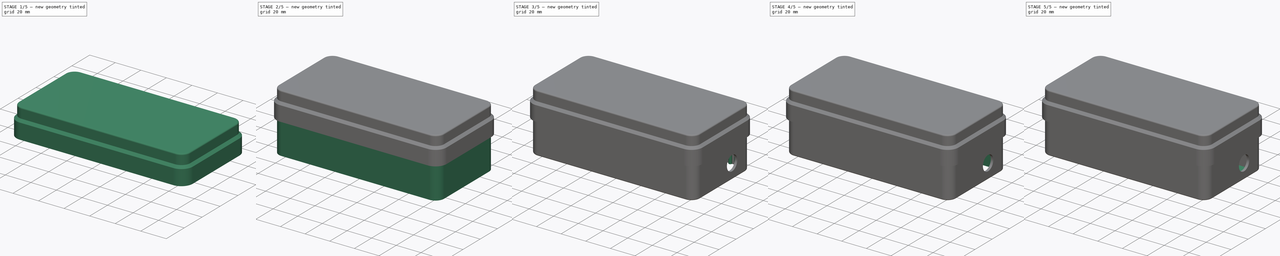
[diagram: build sequence overview — one tinted view per stage of 5, left to right]
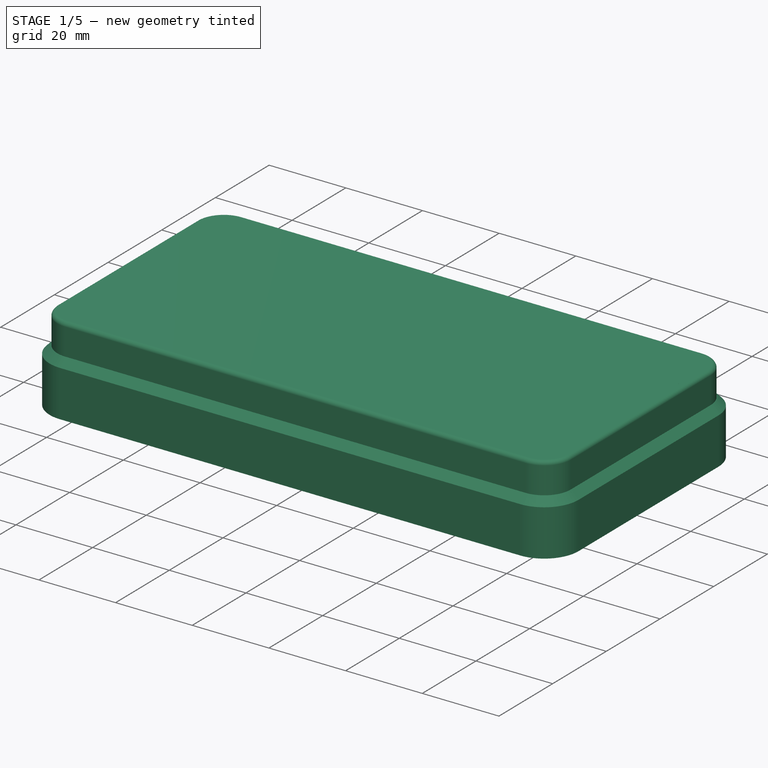
[diagram: stage 1 of 5 — iso view after this stage's code; geometry added in this stage tinted green]
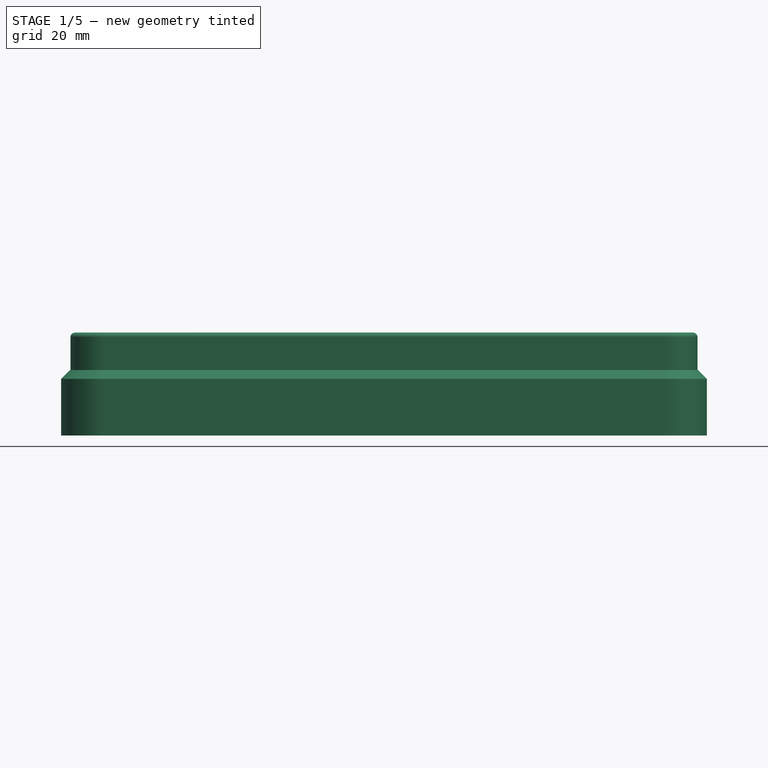
[diagram: stage 1 of 5 — front view after this stage's code; geometry added in this stage tinted green]
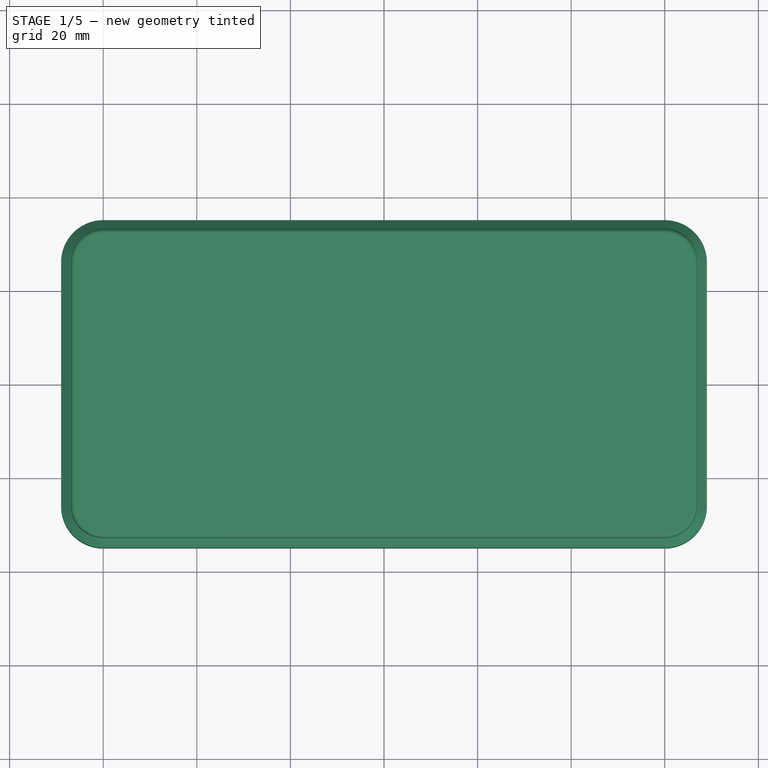
[diagram: stage 1 of 5 — top view after this stage's code; geometry added in this stage tinted green]
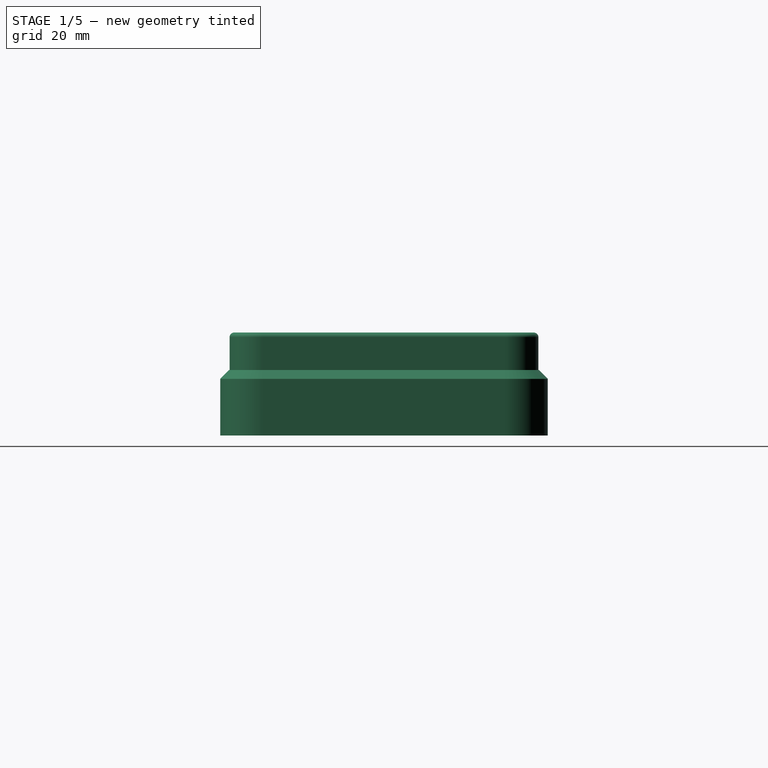
[diagram: stage 1 of 5 — right view after this stage's code; geometry added in this stage tinted green]
FCSTD DOCUMENT  (FreeCAD 0.20R29410 (Git))
Label: minidexed case bottom
License: All rights reserved
LicenseURL: http://en.wikipedia.org/wiki/All_rights_reserved
objects: Sketcher::SketchObject×14, Part::Extrusion×14, Part::Cut×4, Part::MultiFuse×3, Part::Chamfer×2, Part::Fillet×2, PartDesign::Body×1, Part::Cylinder×1
note: 41 computed .brp shape members not serialized (recipe doc carries the construction recipe); baked Part::Feature solids carry a one-line shape summary decoded from their .brp

FEATURE [Sketcher::SketchObject] Sketch024  label="Sketch Lid Top"
  FullyConstrained = true
  MapMode = 5
  Support = -> [XY_Plane]
  sketch-geometry (8):
    g0: ArcOfCircle CenterX=-60 CenterY=26 CenterZ=0 NormalX=0 NormalY=0 NormalZ=1 AngleXU=0 Radius=5 StartAngle=1.5708 EndAngle=3.14159
    g1: LineSegment StartX=-60 StartY=31 StartZ=0 EndX=60 EndY=31 EndZ=0
    g2: ArcOfCircle CenterX=60 CenterY=26 CenterZ=0 NormalX=0 NormalY=0 NormalZ=1 AngleXU=0 Radius=5 StartAngle=1.4318e-12 EndAngle=1.5708
    g3: LineSegment StartX=65 StartY=26 StartZ=0 EndX=65 EndY=-26 EndZ=0
    g4: ArcOfCircle CenterX=60 CenterY=-26 CenterZ=0 NormalX=0 NormalY=0 NormalZ=1 AngleXU=0 Radius=5 StartAngle=4.71239 EndAngle=6.28319
    g5: LineSegment StartX=60 StartY=-31 StartZ=0 EndX=-60 EndY=-31 EndZ=0
    g6: ArcOfCircle CenterX=-60 CenterY=-26 CenterZ=0 NormalX=0 NormalY=0 NormalZ=1 AngleXU=0 Radius=5 StartAngle=3.14159 EndAngle=4.71239
    g7: LineSegment StartX=-65 StartY=-26 StartZ=0 EndX=-65 EndY=26 EndZ=0
  constraints (18):
    c: Tangent(g0,g1) = 1.5708
    c: Tangent(g1,g2) = 1.5708
    c: Tangent(g2,g3) = 1.5708
    c: Tangent(g3,g4) = 1.5708
    c: Tangent(g4,g5) = 1.5708
    c: Tangent(g5,g6) = 1.5708
    c: Tangent(g6,g7) = 1.5708
    c: Tangent(g7,g0) = 1.5708
    c: Horizontal(g5)
    c: Vertical(g3)
    c: Equal(g0,g2)
    c: Equal(g2,g4)
    c: Equal(g4,g6)
    c: Symmetric(g0,g1,g-2)
    c: Symmetric(g0,g6,g-1)
    c: DistanceX(g0,g2) = 130
    c: DistanceY(g4,g1) = 62
    c: Radius(g0) = 5
FEATURE [Part::Extrusion] Extrude012  label="Extrude Lid Top"
  Base = -> Sketch024
  Dir = (0,0,1)
  DirMode = 2
  FaceMakerClass = Part::FaceMakerBullseye
  LengthFwd = 2
  LengthRev = 0
  Placement = pos=(0,0,46) rot=(0,0,1;0rad)
  Solid = true
  Symmetric = false
FEATURE [Sketcher::SketchObject] Sketch025  label="Sketch Lid Walls"
  FullyConstrained = true
  MapMode = 5
  Support = -> [XY_Plane]
  sketch-geometry (16):
    g0: ArcOfCircle CenterX=-60 CenterY=26 CenterZ=0 NormalX=0 NormalY=0 NormalZ=1 AngleXU=0 Radius=5 StartAngle=1.5708 EndAngle=3.14159
    g1: LineSegment StartX=-60 StartY=31 StartZ=0 EndX=60 EndY=31 EndZ=0
    g2: ArcOfCircle CenterX=60 CenterY=26 CenterZ=0 NormalX=0 NormalY=0 NormalZ=1 AngleXU=0 Radius=5 StartAngle=0 EndAngle=1.5708
    g3: LineSegment StartX=65 StartY=26 StartZ=0 EndX=65 EndY=-26 EndZ=0
    g4: ArcOfCircle CenterX=60 CenterY=-26 CenterZ=0 NormalX=0 NormalY=0 NormalZ=1 AngleXU=0 Radius=5 StartAngle=4.71239 EndAngle=6.28319
    g5: LineSegment StartX=60 StartY=-31 StartZ=0 EndX=-60 EndY=-31 EndZ=0
    g6: ArcOfCircle CenterX=-60 CenterY=-26 CenterZ=0 NormalX=0 NormalY=0 NormalZ=1 AngleXU=0 Radius=5 StartAngle=3.14159 EndAngle=4.71239
    g7: LineSegment StartX=-65 StartY=-26 StartZ=0 EndX=-65 EndY=26 EndZ=0
    g8: ArcOfCircle CenterX=-60 CenterY=26 CenterZ=0 NormalX=0 NormalY=0 NormalZ=1 AngleXU=0 Radius=7 StartAngle=1.5708 EndAngle=3.14159
    g9: LineSegment StartX=-60 StartY=33 StartZ=0 EndX=60 EndY=33 EndZ=0
    g10: ArcOfCircle CenterX=60 CenterY=26 CenterZ=0 NormalX=0 NormalY=0 NormalZ=1 AngleXU=0 Radius=7 StartAngle=0 EndAngle=1.5708
    g11: LineSegment StartX=67 StartY=26 StartZ=0 EndX=67 EndY=-26 EndZ=0
    g12: ArcOfCircle CenterX=60 CenterY=-26 CenterZ=0 NormalX=0 NormalY=0 NormalZ=1 AngleXU=0 Radius=7 StartAngle=4.71239 EndAngle=6.28319
    g13: LineSegment StartX=60 StartY=-33 StartZ=0 EndX=-60 EndY=-33 EndZ=0
    g14: ArcOfCircle CenterX=-60 CenterY=-26 CenterZ=0 NormalX=0 NormalY=0 NormalZ=1 AngleXU=0 Radius=7 StartAngle=3.14159 EndAngle=4.71239
    g15: LineSegment StartX=-67 StartY=-26 StartZ=0 EndX=-67 EndY=26 EndZ=0
  constraints (42):
    c: Tangent(g0,g1) = 1.5708
    c: Tangent(g1,g2) = 1.5708
    c: Tangent(g2,g3) = 1.5708
    c: Tangent(g3,g4) = 1.5708
    c: Tangent(g4,g5) = 1.5708
    c: Tangent(g5,g6) = 1.5708
    c: Tangent(g6,g7) = 1.5708
    c: Tangent(g7,g0) = 1.5708
    c: Horizontal(g5)
    c: Vertical(g3)
    c: Equal(g0,g2)
    c: Equal(g2,g4)
    c: Equal(g4,g6)
    c: Symmetric(g0,g1,g-2)
    c: DistanceX(g0,g2) = 130
    c: DistanceY(g4,g1) = 62
    c: Radius(g6) = 5
    c: Coincident(g8,g0)
    c: Radius(g8) = 7
    c: Coincident(g9,g8)
    c: Horizontal(g9)
    c: Coincident(g10,g2)
    c: Coincident(g10,g9)
    c: Coincident(g11,g10)
    c: Vertical(g11)
    c: Coincident(g12,g4)
    c: Coincident(g12,g11)
    c: Coincident(g13,g12)
    c: Horizontal(g13)
    c: Coincident(g14,g6)
    c: Coincident(g14,g13)
    c: Coincident(g15,g14)
    c: Coincident(g15,g8)
    c: Vertical(g15)
    c: Equal(g8,g10)
    c: Equal(g7,g15)
    c: Vertical(g8,g0)
    c: Horizontal(g2,g10)
    c: Horizontal(g3,g11)
    c: Vertical(g5,g13)
    c: Horizontal(g14,g6)
    c: Symmetric(g0,g6,g-1)
FEATURE [Part::Extrusion] Extrude013  label="Extrude Lid Walls"
  Base = -> Sketch025
  Dir = (0,0,1)
  DirMode = 2
  FaceMakerClass = Part::FaceMakerBullseye
  LengthFwd = 0
  LengthRev = 12
  Placement = pos=(0,0,48) rot=(0,0,1;0rad)
  Solid = true
  Symmetric = false
FEATURE [Sketcher::SketchObject] Sketch026  label="Sketch Lid Lip"
  FullyConstrained = true
  MapMode = 5
  Support = -> [XY_Plane]
  sketch-geometry (16):
    g0: ArcOfCircle CenterX=-60 CenterY=26 CenterZ=0 NormalX=0 NormalY=0 NormalZ=1 AngleXU=0 Radius=7 StartAngle=1.5708 EndAngle=3.14159
    g1: LineSegment StartX=-60 StartY=33 StartZ=0 EndX=60 EndY=33 EndZ=0
    g2: ArcOfCircle CenterX=60 CenterY=26 CenterZ=0 NormalX=0 NormalY=0 NormalZ=1 AngleXU=0 Radius=7 StartAngle=4e-16 EndAngle=1.5708
    g3: LineSegment StartX=67 StartY=26 StartZ=0 EndX=67 EndY=-26 EndZ=0
    g4: ArcOfCircle CenterX=60 CenterY=-26 CenterZ=0 NormalX=0 NormalY=0 NormalZ=1 AngleXU=0 Radius=7 StartAngle=4.71239 EndAngle=6.28319
    g5: LineSegment StartX=60 StartY=-33 StartZ=0 EndX=-60 EndY=-33 EndZ=0
    g6: ArcOfCircle CenterX=-60 CenterY=-26 CenterZ=0 NormalX=0 NormalY=0 NormalZ=1 AngleXU=0 Radius=7 StartAngle=3.14159 EndAngle=4.71239
    g7: LineSegment StartX=-67 StartY=-26 StartZ=0 EndX=-67 EndY=26 EndZ=0
    g8: ArcOfCircle CenterX=-60 CenterY=26 CenterZ=0 NormalX=0 NormalY=0 NormalZ=1 AngleXU=0 Radius=9 StartAngle=1.5708 EndAngle=3.14159
    g9: LineSegment StartX=-60 StartY=35 StartZ=0 EndX=60 EndY=35 EndZ=0
    g10: ArcOfCircle CenterX=60 CenterY=26 CenterZ=0 NormalX=0 NormalY=0 NormalZ=1 AngleXU=0 Radius=9 StartAngle=1e-16 EndAngle=1.5708
    g11: LineSegment StartX=69 StartY=26 StartZ=0 EndX=69 EndY=-26 EndZ=0
    g12: ArcOfCircle CenterX=60 CenterY=-26 CenterZ=0 NormalX=0 NormalY=0 NormalZ=1 AngleXU=0 Radius=9 StartAngle=4.71239 EndAngle=6.28319
    g13: LineSegment StartX=60 StartY=-35 StartZ=0 EndX=-60 EndY=-35 EndZ=0
    g14: ArcOfCircle CenterX=-60 CenterY=-26 CenterZ=0 NormalX=0 NormalY=0 NormalZ=1 AngleXU=0 Radius=9 StartAngle=3.14159 EndAngle=4.71239
    g15: LineSegment StartX=-69 StartY=-26 StartZ=0 EndX=-69 EndY=26 EndZ=0
  constraints (42):
    c: Tangent(g0,g1) = 1.5708
    c: Tangent(g1,g2) = 1.5708
    c: Tangent(g2,g3) = 1.5708
    c: Tangent(g3,g4) = 1.5708
    c: Tangent(g4,g5) = 1.5708
    c: Tangent(g5,g6) = 1.5708
    c: Tangent(g6,g7) = 1.5708
    c: Tangent(g7,g0) = 1.5708
    c: Horizontal(g5)
    c: Vertical(g3)
    c: Equal(g0,g2)
    c: Equal(g2,g4)
    c: Equal(g4,g6)
    c: Symmetric(g0,g1,g-2)
    c: DistanceX(g0,g2) = 134
    c: DistanceY(g4,g1) = 66
    c: Radius(g6) = 7
    c: Coincident(g8,g0)
    c: Radius(g8) = 9
    c: Coincident(g9,g8)
    c: Horizontal(g9)
    c: Coincident(g10,g2)
    c: Coincident(g10,g9)
    c: Coincident(g11,g10)
    c: Vertical(g11)
    c: Coincident(g12,g4)
    c: Coincident(g12,g11)
    c: Coincident(g13,g12)
    c: Horizontal(g13)
    c: Coincident(g14,g6)
    c: Coincident(g14,g13)
    c: Coincident(g15,g14)
    c: Coincident(g15,g8)
    c: Vertical(g15)
    c: Equal(g8,g10)
    c: Equal(g7,g15)
    c: Vertical(g8,g0)
    c: Horizontal(g2,g10)
    c: Horizontal(g3,g11)
    c: Vertical(g5,g13)
    c: Horizontal(g14,g6)
    c: Symmetric(g0,g6,g-1)
FEATURE [Part::Extrusion] Extrude014  label="Extrude Lid Lip"
  Base = -> Sketch026
  Dir = (0,0,1)
  DirMode = 2
  FaceMakerClass = Part::FaceMakerBullseye
  LengthFwd = 0
  LengthRev = 14
  Placement = pos=(0,0,40) rot=(0,0,1;0rad)
  Solid = true
  Symmetric = false
FEATURE [Part::Fillet] Fillet001  label="Fillet Lid Walls"
  Base = -> Extrude013
  Edges = 8 edges r=1: [Edge4,Edge7,Edge10,Edge13,Edge16,Edge19,Edge22,Edge24]
FEATURE [Part::Chamfer] Chamfer001  label="Chamfer Lid Lip"
  Base = -> Extrude014
  Edges = 8 edges r=1.9: [Edge4,Edge7,Edge10,Edge13,Edge16,Edge19,Edge22,Edge24]
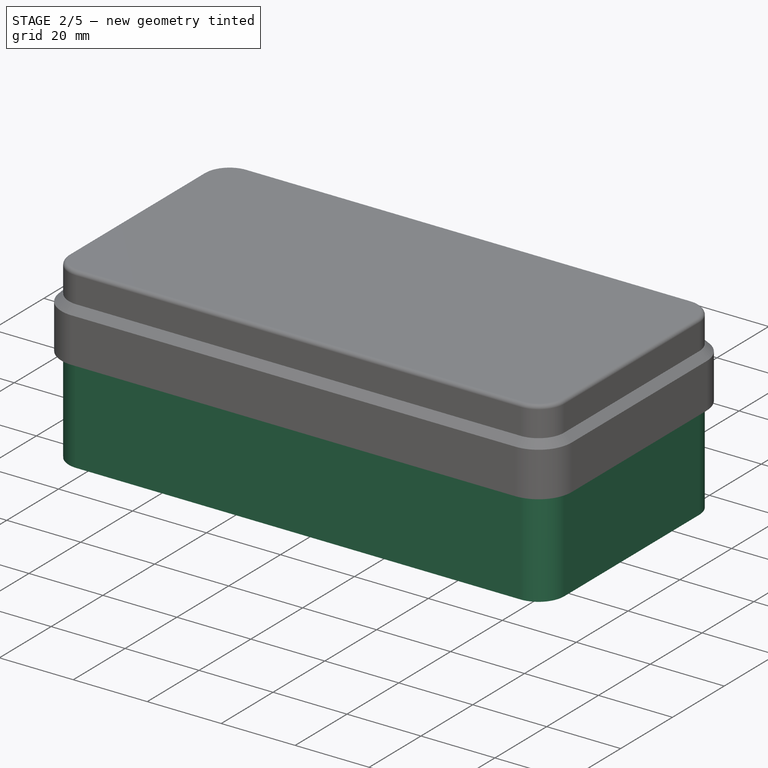
[diagram: stage 2 of 5 — iso view after this stage's code; geometry added in this stage tinted green]
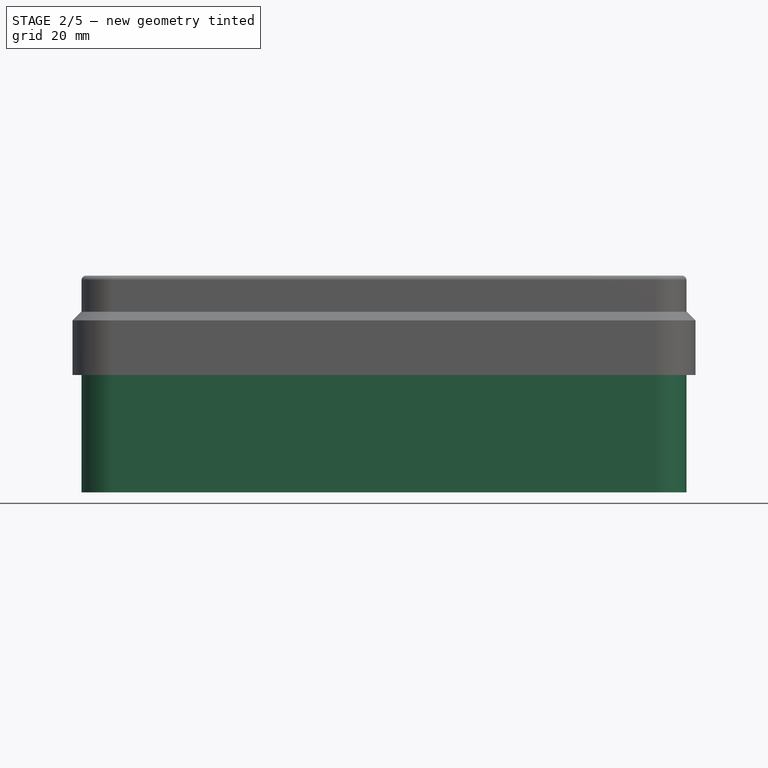
[diagram: stage 2 of 5 — front view after this stage's code; geometry added in this stage tinted green]
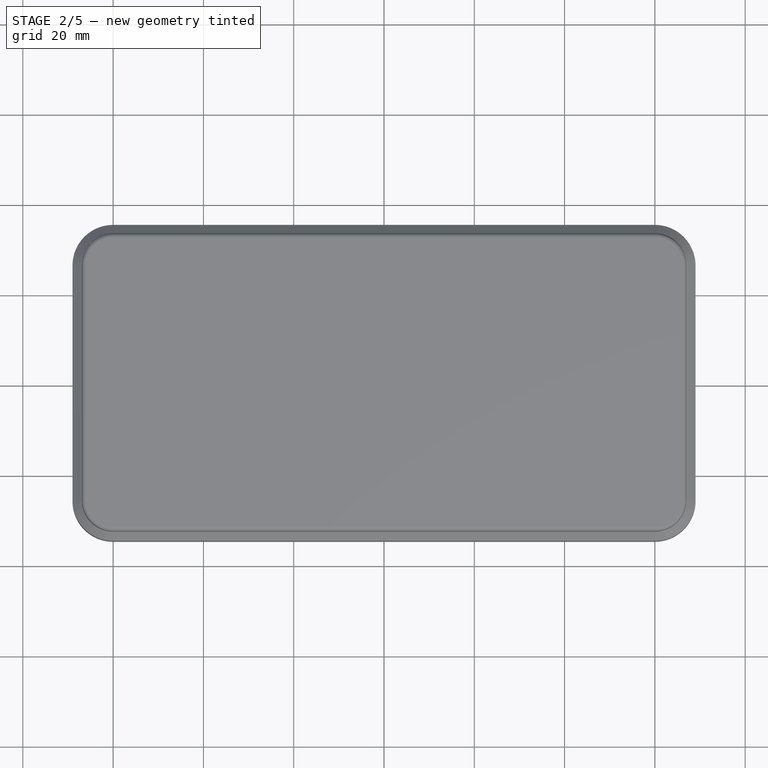
[diagram: stage 2 of 5 — top view after this stage's code; geometry added in this stage tinted green]
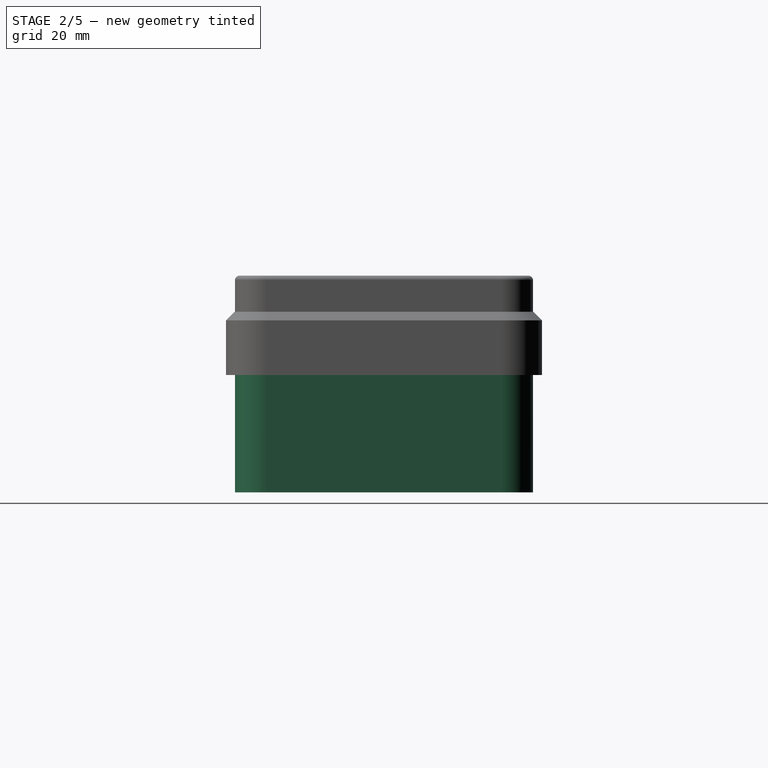
[diagram: stage 2 of 5 — right view after this stage's code; geometry added in this stage tinted green]
FEATURE [Sketcher::SketchObject] Sketch020  label="Sketch Side Walls"
  FullyConstrained = true
  MapMode = 5
  Support = -> [XY_Plane]
  sketch-geometry (16):
    g0: ArcOfCircle CenterX=-60 CenterY=26 CenterZ=0 NormalX=0 NormalY=0 NormalZ=1 AngleXU=0 Radius=5 StartAngle=1.5708 EndAngle=3.14159
    g1: LineSegment StartX=-60 StartY=31 StartZ=0 EndX=60 EndY=31 EndZ=0
    g2: ArcOfCircle CenterX=60 CenterY=26 CenterZ=0 NormalX=0 NormalY=0 NormalZ=1 AngleXU=0 Radius=5 StartAngle=0 EndAngle=1.5708
    g3: LineSegment StartX=65 StartY=26 StartZ=0 EndX=65 EndY=-26 EndZ=0
    g4: ArcOfCircle CenterX=60 CenterY=-26 CenterZ=0 NormalX=0 NormalY=0 NormalZ=1 AngleXU=0 Radius=5 StartAngle=4.71239 EndAngle=6.28319
    g5: LineSegment StartX=60 StartY=-31 StartZ=0 EndX=-60 EndY=-31 EndZ=0
    g6: ArcOfCircle CenterX=-60 CenterY=-26 CenterZ=0 NormalX=0 NormalY=0 NormalZ=1 AngleXU=0 Radius=5 StartAngle=3.14159 EndAngle=4.71239
    g7: LineSegment StartX=-65 StartY=-26 StartZ=0 EndX=-65 EndY=26 EndZ=0
    g8: ArcOfCircle CenterX=-60 CenterY=26 CenterZ=0 NormalX=0 NormalY=0 NormalZ=1 AngleXU=0 Radius=7 StartAngle=1.5708 EndAngle=3.14159
    g9: LineSegment StartX=-60 StartY=33 StartZ=0 EndX=60 EndY=33 EndZ=0
    g10: ArcOfCircle CenterX=60 CenterY=26 CenterZ=0 NormalX=0 NormalY=0 NormalZ=1 AngleXU=0 Radius=7 StartAngle=0 EndAngle=1.5708
    g11: LineSegment StartX=67 StartY=26 StartZ=0 EndX=67 EndY=-26 EndZ=0
    g12: ArcOfCircle CenterX=60 CenterY=-26 CenterZ=0 NormalX=0 NormalY=0 NormalZ=1 AngleXU=0 Radius=7 StartAngle=4.71239 EndAngle=6.28319
    g13: LineSegment StartX=60 StartY=-33 StartZ=0 EndX=-60 EndY=-33 EndZ=0
    g14: ArcOfCircle CenterX=-60 CenterY=-26 CenterZ=0 NormalX=0 NormalY=0 NormalZ=1 AngleXU=0 Radius=7 StartAngle=3.14159 EndAngle=4.71239
    g15: LineSegment StartX=-67 StartY=-26 StartZ=0 EndX=-67 EndY=26 EndZ=0
  constraints (42):
    c: Tangent(g0,g1) = 1.5708
    c: Tangent(g1,g2) = 1.5708
    c: Tangent(g2,g3) = 1.5708
    c: Tangent(g3,g4) = 1.5708
    c: Tangent(g4,g5) = 1.5708
    c: Tangent(g5,g6) = 1.5708
    c: Tangent(g6,g7) = 1.5708
    c: Tangent(g7,g0) = 1.5708
    c: Horizontal(g5)
    c: Vertical(g3)
    c: Equal(g0,g2)
    c: Equal(g2,g4)
    c: Equal(g4,g6)
    c: Symmetric(g0,g1,g-2)
    c: DistanceX(g0,g2) = 130
    c: DistanceY(g4,g1) = 62
    c: Radius(g6) = 5
    c: Coincident(g8,g0)
    c: Radius(g8) = 7
    c: Coincident(g9,g8)
    c: Horizontal(g9)
    c: Coincident(g10,g2)
    c: Coincident(g10,g9)
    c: Coincident(g11,g10)
    c: Vertical(g11)
    c: Coincident(g12,g4)
    c: Coincident(g12,g11)
    c: Coincident(g13,g12)
    c: Horizontal(g13)
    c: Coincident(g14,g6)
    c: Coincident(g14,g13)
    c: Coincident(g15,g14)
    c: Coincident(g15,g8)
    c: Vertical(g15)
    c: Equal(g8,g10)
    c: Equal(g7,g15)
    c: Vertical(g8,g0)
    c: Horizontal(g2,g10)
    c: Horizontal(g3,g11)
    c: Vertical(g5,g13)
    c: Horizontal(g14,g6)
    c: Symmetric(g0,g6,g-1)
FEATURE [Part::Extrusion] Extrude008  label="Extrude Side Walls"
  Base = -> Sketch020
  Dir = (0,0,1)
  DirMode = 2
  FaceMakerClass = Part::FaceMakerBullseye
  LengthFwd = 36
  LengthRev = 0
  Solid = true
  Symmetric = false
FEATURE [Part::Cylinder] Cylinder  label="Cylinder SD Card Hole"
  Angle = 360
  AttacherType = Attacher::AttachEngine3D
  FirstAngle = 0
  Height = 2
  Placement = pos=(65,11,12) rot=(0,1,0;1.5708rad)
  Radius = 6
  SecondAngle = 0
FEATURE [Part::Extrusion] Extrude011  label="Extrude Side Walls Holes"
  Base = -> Sketch023
  Dir = (0,-1,-3e-16)
  DirMode = 2
  FaceMakerClass = Part::FaceMakerBullseye
  LengthFwd = 2
  LengthRev = 0
  Solid = true
  Symmetric = false
FEATURE [Part::MultiFuse] Fusion001  label="Fusion Side Walls Holes"
  Shapes = -> [Extrude011,Cylinder]
FEATURE [Part::MultiFuse] Fusion002  label="Fusion Lid"
  Shapes = -> [Extrude012,Fillet001,Chamfer001]
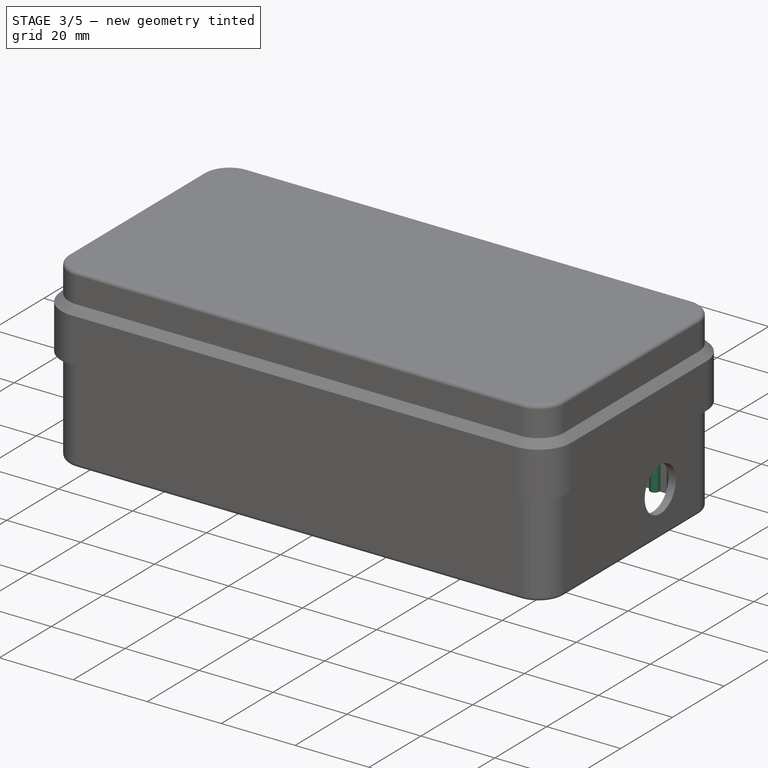
[diagram: stage 3 of 5 — iso view after this stage's code; geometry added in this stage tinted green]
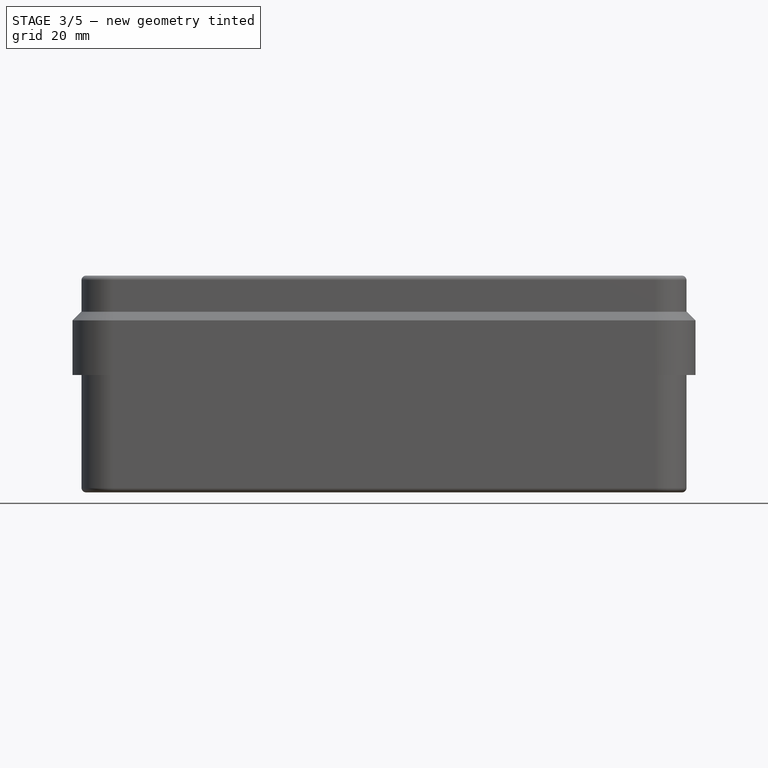
[diagram: stage 3 of 5 — front view after this stage's code; geometry added in this stage tinted green]
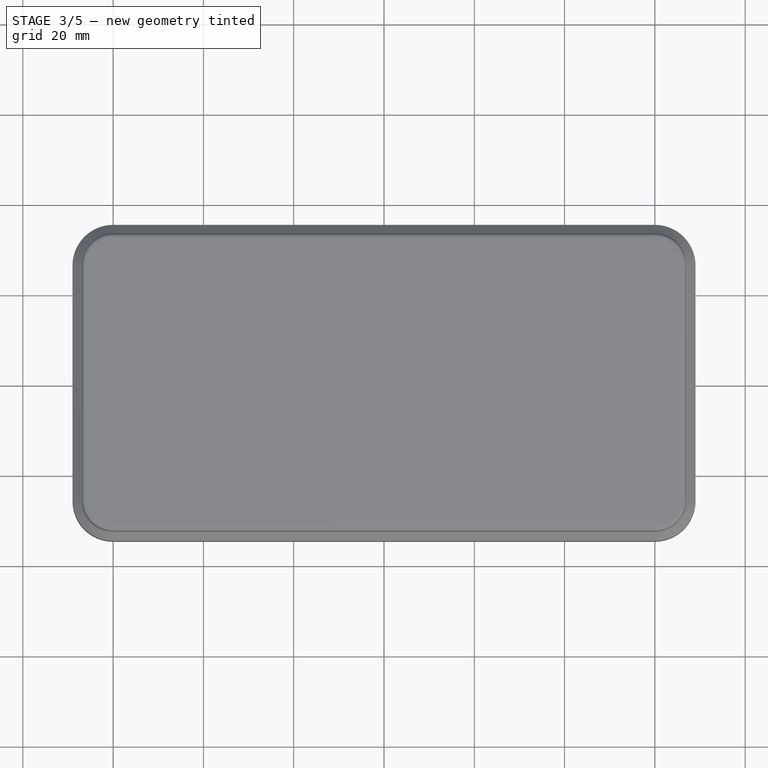
[diagram: stage 3 of 5 — top view after this stage's code; geometry added in this stage tinted green]
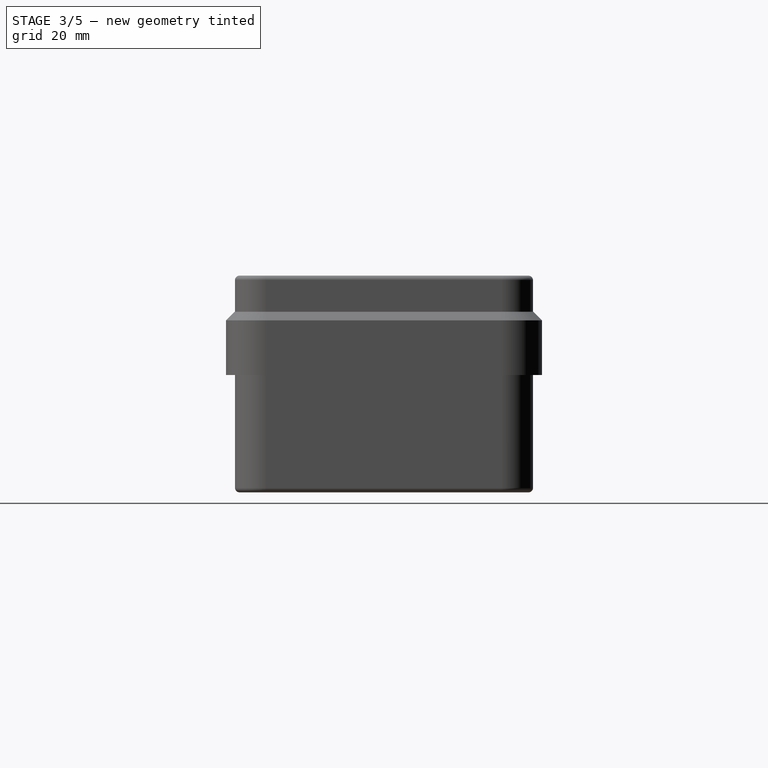
[diagram: stage 3 of 5 — right view after this stage's code; geometry added in this stage tinted green]
FEATURE [Part::Extrusion] Extrude005  label="Extrude DAC Standoffs Blind Holes"
  Base = -> Sketch017
  Dir = (0,0,1)
  DirMode = 2
  FaceMakerClass = Part::FaceMakerBullseye
  LengthFwd = 14
  LengthRev = 0
  Placement = pos=(0,0,2) rot=(0,0,1;0rad)
  Solid = true
  Symmetric = false
FEATURE [Sketcher::SketchObject] Sketch018  label="Sketch Face Panel Standoffs"
  FullyConstrained = true
  MapMode = 5
  Support = -> [XY_Plane]
  sketch-geometry (12):
    g0: ArcOfCircle CenterX=-60 CenterY=26 CenterZ=0 NormalX=0 NormalY=0 NormalZ=1 AngleXU=0 Radius=5 StartAngle=1.5708 EndAngle=3.14159
    g1: LineSegment StartX=-60 StartY=31 StartZ=0 EndX=60 EndY=31 EndZ=0
    g2: ArcOfCircle CenterX=60 CenterY=26 CenterZ=0 NormalX=0 NormalY=0 NormalZ=1 AngleXU=0 Radius=5 StartAngle=2.775e-13 EndAngle=1.5708
    g3: LineSegment StartX=65 StartY=26 StartZ=0 EndX=65 EndY=-26 EndZ=0
    g4: ArcOfCircle CenterX=60 CenterY=-26 CenterZ=0 NormalX=0 NormalY=0 NormalZ=1 AngleXU=0 Radius=5 StartAngle=4.71239 EndAngle=6.28319
    g5: LineSegment StartX=60 StartY=-31 StartZ=0 EndX=-60 EndY=-31 EndZ=0
    g6: ArcOfCircle CenterX=-60 CenterY=-26 CenterZ=0 NormalX=0 NormalY=0 NormalZ=1 AngleXU=0 Radius=5 StartAngle=3.14159 EndAngle=4.71239
    g7: LineSegment StartX=-65 StartY=-26 StartZ=0 EndX=-65 EndY=26 EndZ=0
    g8: Circle CenterX=-61.5 CenterY=27.5 CenterZ=0 NormalX=0 NormalY=0 NormalZ=1 AngleXU=0 Radius=3.5
    g9: Circle CenterX=61.5 CenterY=27.5 CenterZ=0 NormalX=0 NormalY=0 NormalZ=1 AngleXU=0 Radius=3.5
    g10: Circle CenterX=-61.5 CenterY=-27.5 CenterZ=0 NormalX=0 NormalY=0 NormalZ=1 AngleXU=0 Radius=3.5
    g11: Circle CenterX=61.5 CenterY=-27.5 CenterZ=0 NormalX=0 NormalY=0 NormalZ=1 AngleXU=0 Radius=3.5
  constraints (30):
    c: Tangent(g0,g1) = 1.5708
    c: Tangent(g1,g2) = 1.5708
    c: Tangent(g2,g3) = 1.5708
    c: Tangent(g3,g4) = 1.5708
    c: Tangent(g4,g5) = 1.5708
    c: Tangent(g5,g6) = 1.5708
    c: Tangent(g6,g7) = 1.5708
    c: Tangent(g7,g0) = 1.5708
    c: Horizontal(g5)
    c: Vertical(g3)
    c: Equal(g0,g2)
    c: Equal(g2,g4)
    c: Equal(g4,g6)
    c: Symmetric(g0,g1,g-2)
    c: DistanceX(g0,g2) = 130
    c: DistanceY(g4,g1) = 62
    c: Radius(g6) = 5
    c: Diameter(g8) = 7
    c: Equal(g8,g9)
    c: Equal(g8,g10)
    c: Equal(g8,g11)
    c: Horizontal(g8,g9)
    c: Horizontal(g10,g11)
    c: Vertical(g8,g10)
    c: Vertical(g9,g11)
    c: DistanceY(g8,g0) = 3.5
    c: DistanceX(g0,g8) = 3.5
    c: DistanceX(g9,g2) = 3.5
    c: DistanceY(g5,g10) = 3.5
    c: Symmetric(g0,g6,g-1)
FEATURE [Sketcher::SketchObject] Sketch019  label="Sketch Face Panel Standoffs Blind Holes"
  FullyConstrained = true
  MapMode = 5
  Support = -> [XY_Plane]
  sketch-geometry (12):
    g0: ArcOfCircle CenterX=-60 CenterY=26 CenterZ=0 NormalX=0 NormalY=0 NormalZ=1 AngleXU=0 Radius=5 StartAngle=1.5708 EndAngle=3.14159
    g1: LineSegment StartX=-60 StartY=31 StartZ=0 EndX=60 EndY=31 EndZ=0
    g2: ArcOfCircle CenterX=60 CenterY=26 CenterZ=0 NormalX=0 NormalY=0 NormalZ=1 AngleXU=0 Radius=5 StartAngle=2.778e-13 EndAngle=1.5708
    g3: LineSegment StartX=65 StartY=26 StartZ=0 EndX=65 EndY=-26 EndZ=0
    g4: ArcOfCircle CenterX=60 CenterY=-26 CenterZ=0 NormalX=0 NormalY=0 NormalZ=1 AngleXU=0 Radius=5 StartAngle=4.71239 EndAngle=6.28319
    g5: LineSegment StartX=60 StartY=-31 StartZ=0 EndX=-60 EndY=-31 EndZ=0
    g6: ArcOfCircle CenterX=-60 CenterY=-26 CenterZ=0 NormalX=0 NormalY=0 NormalZ=1 AngleXU=0 Radius=5 StartAngle=3.14159 EndAngle=4.71239
    g7: LineSegment StartX=-65 StartY=-26 StartZ=0 EndX=-65 EndY=26 EndZ=0
    g8: Circle CenterX=-61.5 CenterY=27.5 CenterZ=0 NormalX=0 NormalY=0 NormalZ=1 AngleXU=0 Radius=1.25
    g9: Circle CenterX=61.5 CenterY=27.5 CenterZ=0 NormalX=0 NormalY=0 NormalZ=1 AngleXU=0 Radius=1.25
    g10: Circle CenterX=-61.5 CenterY=-27.5 CenterZ=0 NormalX=0 NormalY=0 NormalZ=1 AngleXU=0 Radius=1.25
    g11: Circle CenterX=61.5 CenterY=-27.5 CenterZ=0 NormalX=0 NormalY=0 NormalZ=1 AngleXU=0 Radius=1.25
  constraints (30):
    c: Tangent(g0,g1) = 1.5708
    c: Tangent(g1,g2) = 1.5708
    c: Tangent(g2,g3) = 1.5708
    c: Tangent(g3,g4) = 1.5708
    c: Tangent(g4,g5) = 1.5708
    c: Tangent(g5,g6) = 1.5708
    c: Tangent(g6,g7) = 1.5708
    c: Tangent(g7,g0) = 1.5708
    c: Horizontal(g5)
    c: Vertical(g3)
    c: Equal(g0,g2)
    c: Equal(g2,g4)
    c: Equal(g4,g6)
    c: Symmetric(g0,g1,g-2)
    c: DistanceX(g0,g2) = 130
    c: DistanceY(g4,g1) = 62
    c: Radius(g6) = 5
    c: Diameter(g8) = 2.5
    c: Equal(g8,g9)
    c: Equal(g8,g10)
    c: Equal(g8,g11)
    c: Horizontal(g8,g9)
    c: Horizontal(g10,g11)
    c: Vertical(g8,g10)
    c: Vertical(g9,g11)
    c: DistanceY(g8,g0) = 3.5
    c: DistanceX(g0,g8) = 3.5
    c: DistanceX(g9,g2) = 3.5
    c: DistanceY(g5,g10) = 3.5
    c: Symmetric(g0,g6,g-1)
FEATURE [Part::Extrusion] Extrude006  label="Extrude Face Panel Standoffs"
  Base = -> Sketch018
  Dir = (0,0,1)
  DirMode = 2
  FaceMakerClass = Part::FaceMakerBullseye
  LengthFwd = 32
  LengthRev = 0
  Placement = pos=(0,0,2) rot=(0,0,1;0rad)
  Solid = true
  Symmetric = false
FEATURE [Part::Extrusion] Extrude007  label="Extrude Face Panel Standoffs Blind Holes"
  Base = -> Sketch019
  Dir = (0,0,1)
  DirMode = 2
  FaceMakerClass = Part::FaceMakerBullseye
  LengthFwd = 32
  LengthRev = 0
  Placement = pos=(0,0,2) rot=(0,0,1;0rad)
  Solid = true
  Symmetric = false
FEATURE [Part::Cut] Cut002  label="Cut Face Panel Standoffs"
  Base = -> Extrude006
  Tool = -> Extrude007
FEATURE [Part::Cut] Cut003  label="Cut Side Walls"
  Base = -> Extrude008
  Tool = -> Fusion001
FEATURE [Part::Fillet] Fillet  label="Fillet Side Walls"
  Base = -> Cut003
  Edges = 16 edges r=1: [Edge3,Edge4,Edge5,Edge6,Edge37,Edge38,Edge39,Edge40,Edge41,Edge42,Edge43,Edge52,Edge53,Edge54,Edge55,Edge56]
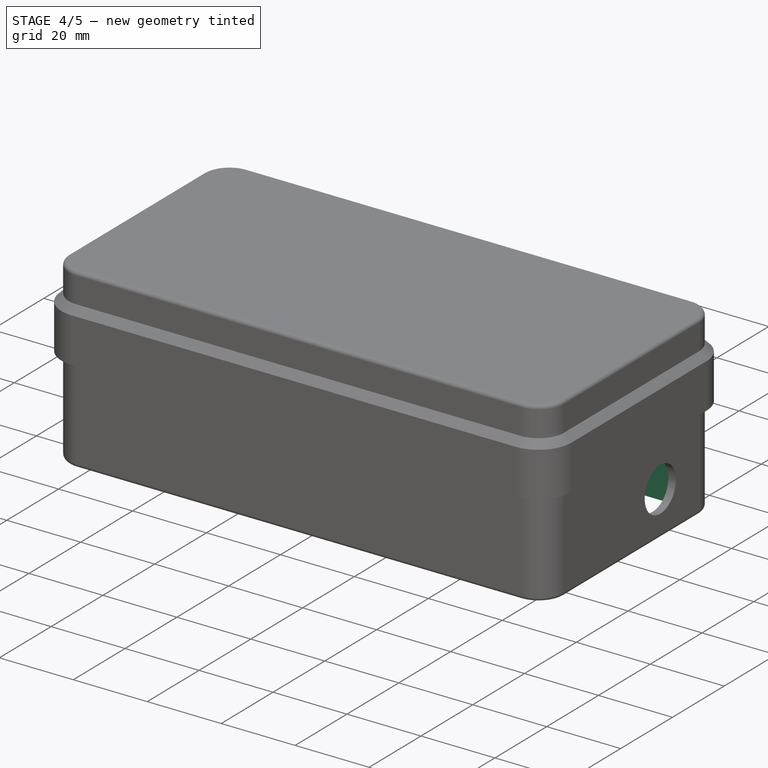
[diagram: stage 4 of 5 — iso view after this stage's code; geometry added in this stage tinted green]
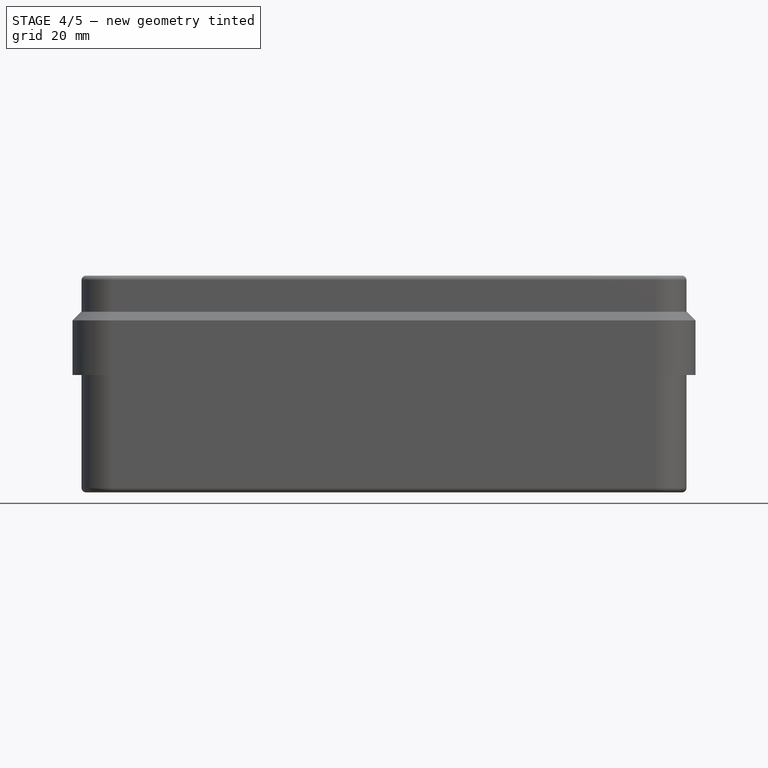
[diagram: stage 4 of 5 — front view after this stage's code; geometry added in this stage tinted green]
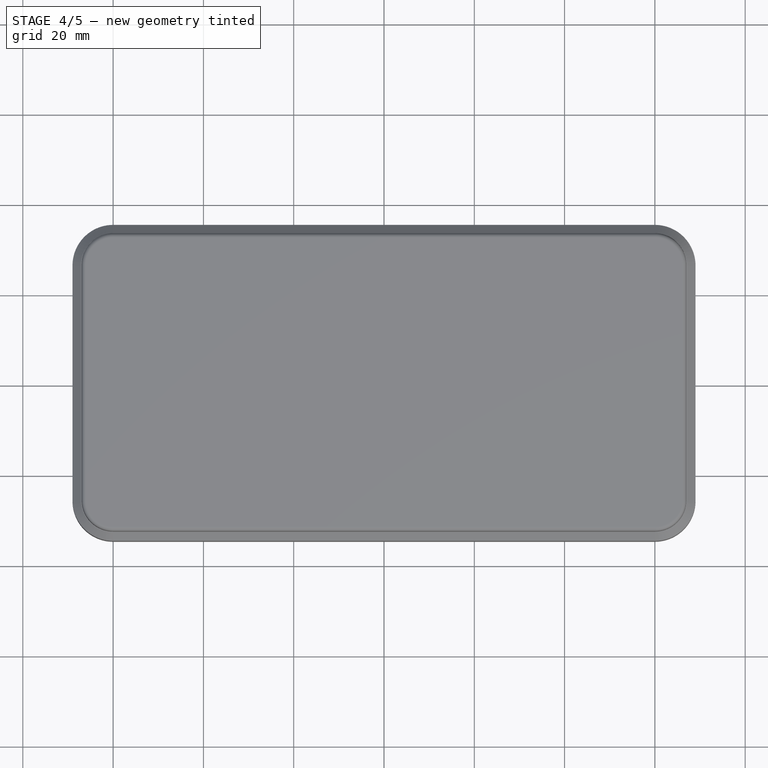
[diagram: stage 4 of 5 — top view after this stage's code; geometry added in this stage tinted green]
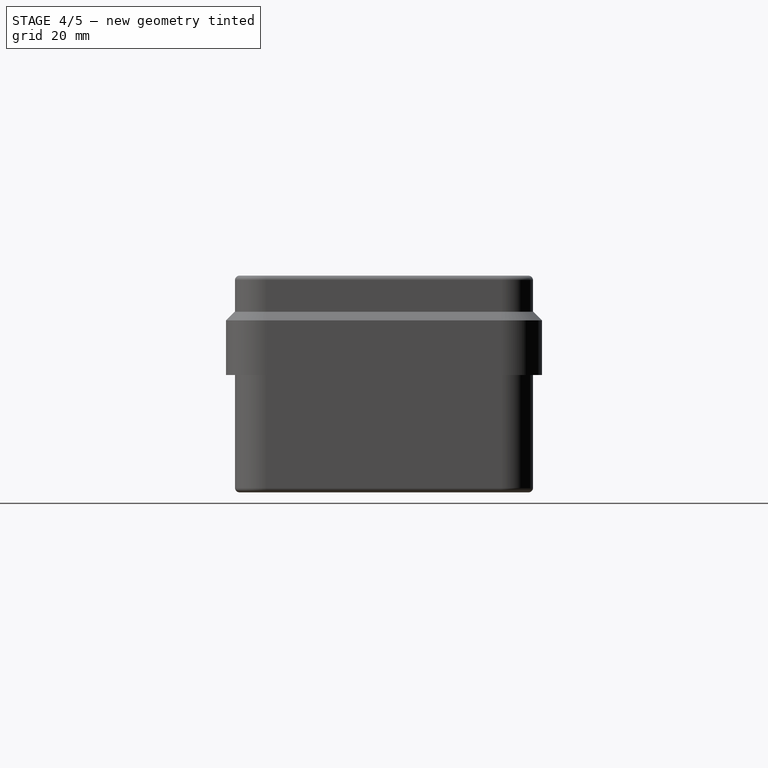
[diagram: stage 4 of 5 — right view after this stage's code; geometry added in this stage tinted green]
FEATURE [Part::Extrusion] Extrude001  label="Extrude Pi Zero Standoffs"
  Base = -> Sketch012
  Dir = (0,0,1)
  DirMode = 2
  FaceMakerClass = Part::FaceMakerBullseye
  LengthFwd = 4
  LengthRev = 0
  Placement = pos=(0,0,2) rot=(0,0,1;0rad)
  Solid = true
  Symmetric = false
FEATURE [Part::Extrusion] Extrude002  label="Extrude DAC Standoffs"
  Base = -> Sketch
  Dir = (0,0,1)
  DirMode = 2
  FaceMakerClass = Part::FaceMakerBullseye
  LengthFwd = 14
  LengthRev = 0
  Placement = pos=(0,0,2) rot=(0,0,1;0rad)
  Solid = true
  Symmetric = false
FEATURE [Part::Extrusion] Extrude004  label="Extrude Pi Zero Standoffs Blind Holes"
  Base = -> Sketch016
  Dir = (0,0,1)
  DirMode = 2
  FaceMakerClass = Part::FaceMakerBullseye
  LengthFwd = 4
  LengthRev = 0
  Placement = pos=(0,0,2) rot=(0,0,1;0rad)
  Solid = true
  Symmetric = false
FEATURE [Part::Cut] Cut  label="Cut Pi Zero Standoffs"
  Base = -> Extrude001
  Tool = -> Extrude004
FEATURE [Part::Cut] Cut001  label="Cut DAC Standoffs"
  Base = -> Extrude002
  Tool = -> Extrude005
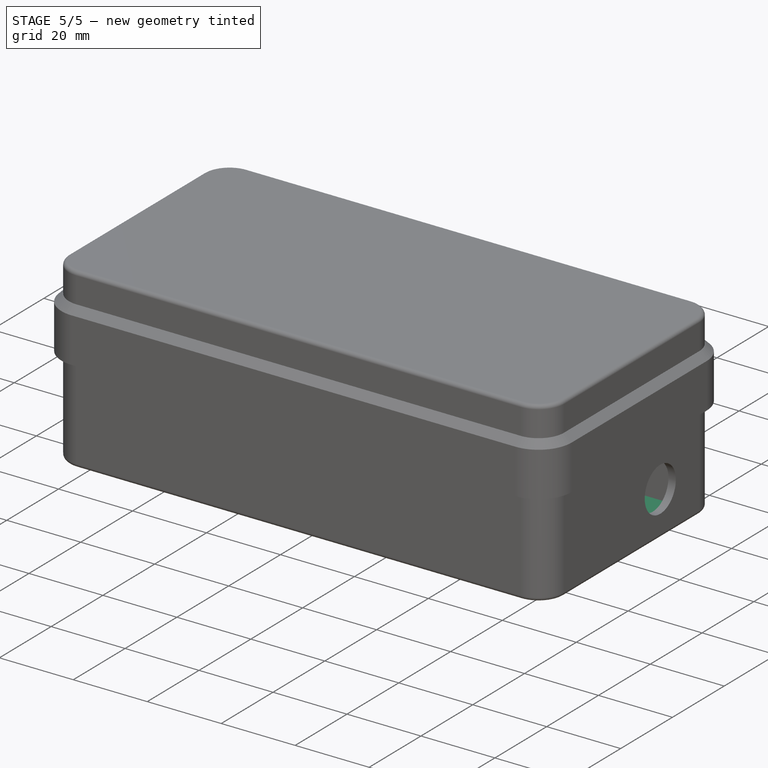
[diagram: stage 5 of 5 — iso view after this stage's code; geometry added in this stage tinted green]
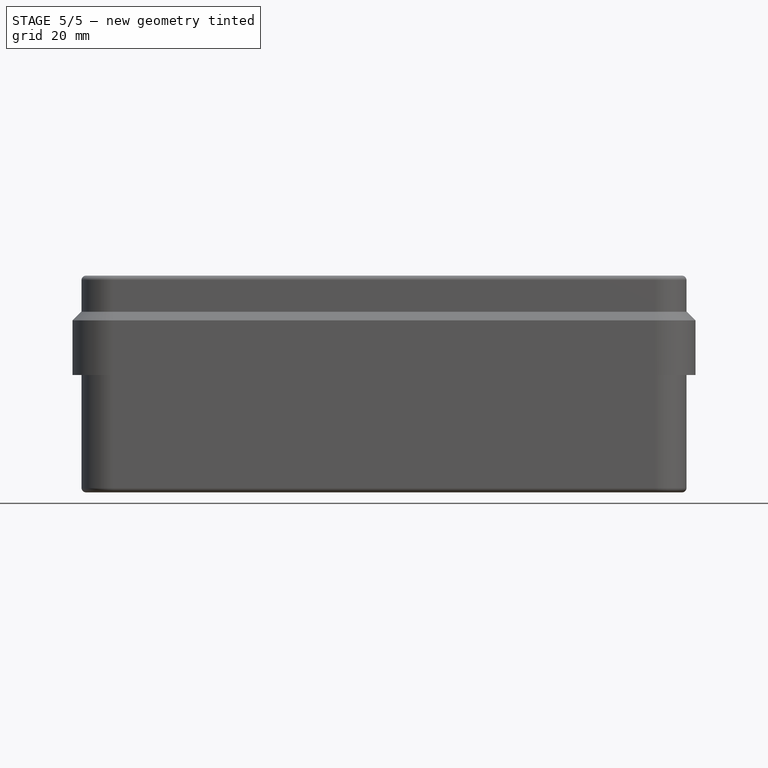
[diagram: stage 5 of 5 — front view after this stage's code; geometry added in this stage tinted green]
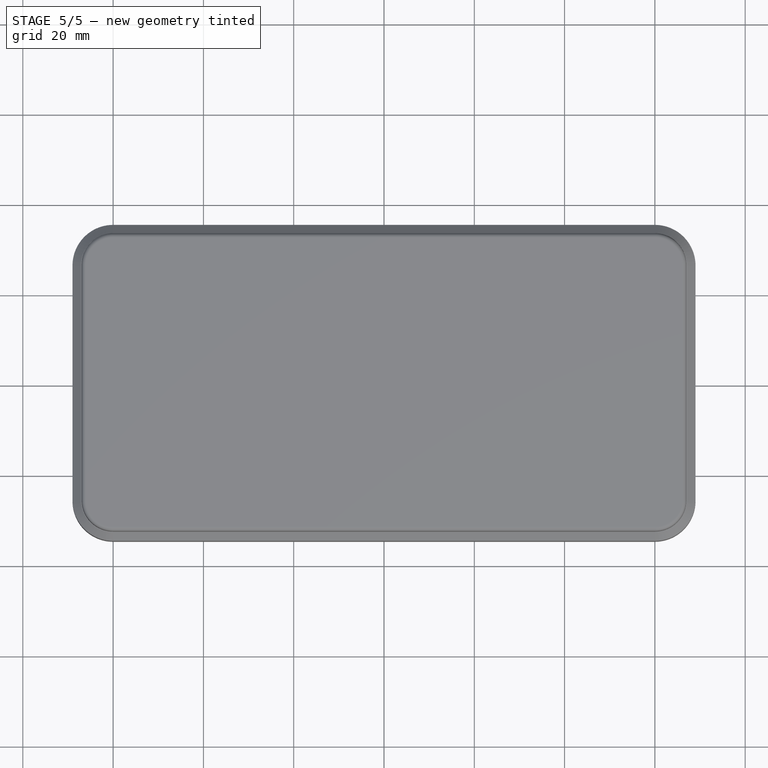
[diagram: stage 5 of 5 — top view after this stage's code; geometry added in this stage tinted green]
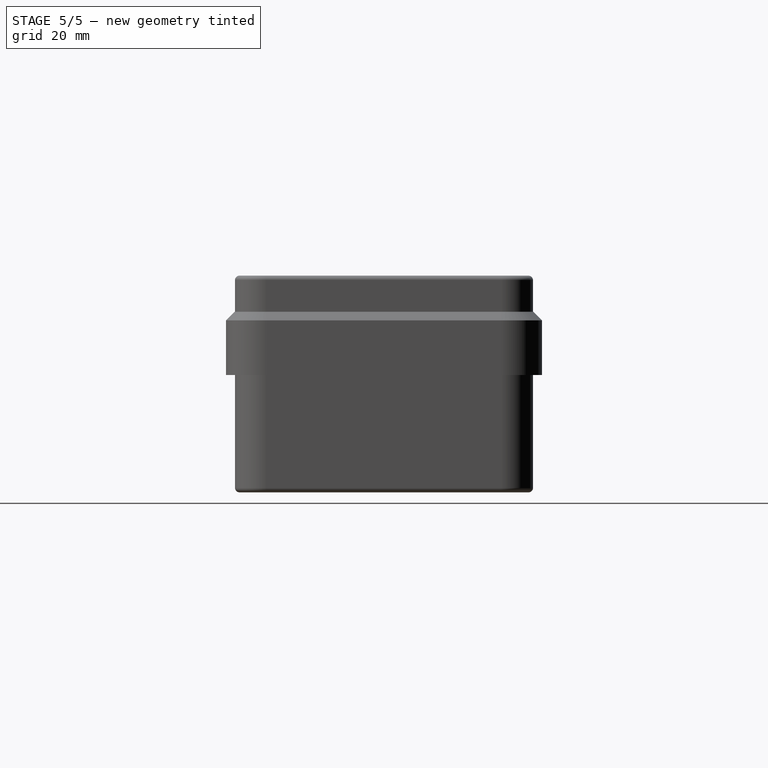
[diagram: stage 5 of 5 — right view after this stage's code; geometry added in this stage tinted green]
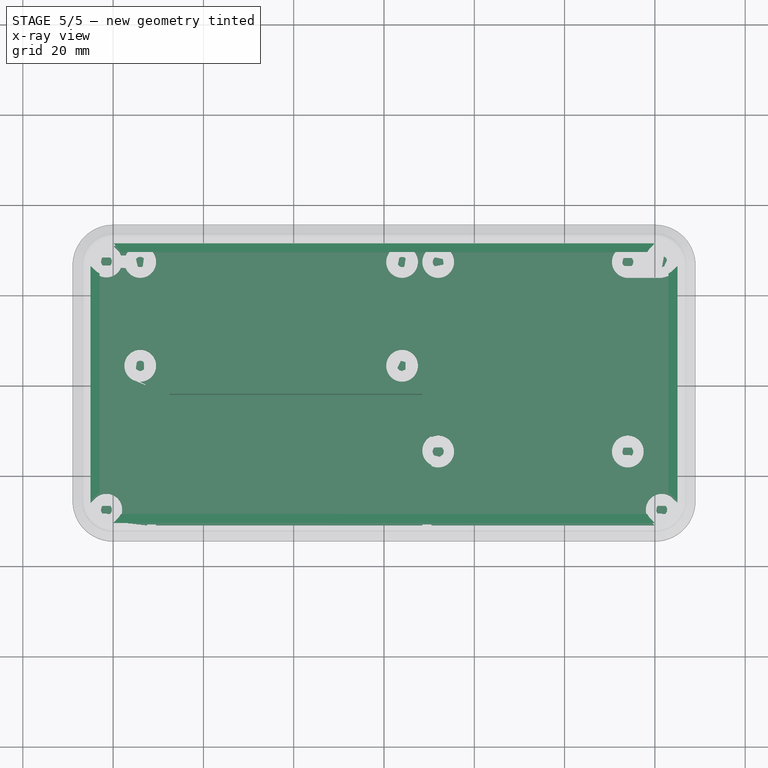
[diagram: stage 5 of 5 — x-ray composite at the top view; earlier geometry ghosted, this stage's added geometry solid]
FEATURE [Sketcher::SketchObject] Sketch006  label="Sketch Base"
  FullyConstrained = true
  MapMode = 5
  Support = -> [XY_Plane]
  sketch-geometry (8):
    g0: ArcOfCircle CenterX=-60 CenterY=26 CenterZ=0 NormalX=0 NormalY=0 NormalZ=1 AngleXU=0 Radius=5 StartAngle=1.5708 EndAngle=3.14159
    g1: LineSegment StartX=-60 StartY=31 StartZ=0 EndX=60 EndY=31 EndZ=0
    g2: ArcOfCircle CenterX=60 CenterY=26 CenterZ=0 NormalX=0 NormalY=0 NormalZ=1 AngleXU=0 Radius=5 StartAngle=1.4318e-12 EndAngle=1.5708
    g3: LineSegment StartX=65 StartY=26 StartZ=0 EndX=65 EndY=-26 EndZ=0
    g4: ArcOfCircle CenterX=60 CenterY=-26 CenterZ=0 NormalX=0 NormalY=0 NormalZ=1 AngleXU=0 Radius=5 StartAngle=4.71239 EndAngle=6.28319
    g5: LineSegment StartX=60 StartY=-31 StartZ=0 EndX=-60 EndY=-31 EndZ=0
    g6: ArcOfCircle CenterX=-60 CenterY=-26 CenterZ=0 NormalX=0 NormalY=0 NormalZ=1 AngleXU=0 Radius=5 StartAngle=3.14159 EndAngle=4.71239
    g7: LineSegment StartX=-65 StartY=-26 StartZ=0 EndX=-65 EndY=26 EndZ=0
  constraints (18):
    c: Tangent(g0,g1) = 1.5708
    c: Tangent(g1,g2) = 1.5708
    c: Tangent(g2,g3) = 1.5708
    c: Tangent(g3,g4) = 1.5708
    c: Tangent(g4,g5) = 1.5708
    c: Tangent(g5,g6) = 1.5708
    c: Tangent(g6,g7) = 1.5708
    c: Tangent(g7,g0) = 1.5708
    c: Horizontal(g5)
    c: Vertical(g3)
    c: Equal(g0,g2)
    c: Equal(g2,g4)
    c: Equal(g4,g6)
    c: Symmetric(g0,g1,g-2)
    c: Symmetric(g0,g6,g-1)
    c: DistanceX(g0,g2) = 130
    c: DistanceY(g4,g1) = 62
    c: Radius(g0) = 5
FEATURE [Sketcher::SketchObject] Sketch012  label="Sketch Pi Zero Standoffs"
  FullyConstrained = true
  MapMode = 5
  Support = -> [XY_Plane]
  sketch-geometry (12):
    g0: Circle CenterX=-54 CenterY=27.4 CenterZ=0 NormalX=0 NormalY=0 NormalZ=1 AngleXU=0 Radius=3.5
    g1: Circle CenterX=4 CenterY=27.4 CenterZ=0 NormalX=0 NormalY=0 NormalZ=1 AngleXU=0 Radius=3.5
    g2: Circle CenterX=-54 CenterY=4.4 CenterZ=0 NormalX=0 NormalY=0 NormalZ=1 AngleXU=0 Radius=3.5
    g3: Circle CenterX=4 CenterY=4.4 CenterZ=0 NormalX=0 NormalY=0 NormalZ=1 AngleXU=0 Radius=3.5
    g4: ArcOfCircle CenterX=-60 CenterY=26 CenterZ=0 NormalX=0 NormalY=0 NormalZ=1 AngleXU=0 Radius=5 StartAngle=1.5708 EndAngle=3.14159
    g5: LineSegment StartX=-60 StartY=31 StartZ=0 EndX=60 EndY=31 EndZ=0
    g6: ArcOfCircle CenterX=60 CenterY=26 CenterZ=0 NormalX=0 NormalY=0 NormalZ=1 AngleXU=0 Radius=5 StartAngle=0 EndAngle=1.5708
    g7: LineSegment StartX=65 StartY=26 StartZ=0 EndX=65 EndY=-26 EndZ=0
    g8: ArcOfCircle CenterX=60 CenterY=-26 CenterZ=0 NormalX=0 NormalY=0 NormalZ=1 AngleXU=0 Radius=5 StartAngle=4.71239 EndAngle=6.28319
    g9: LineSegment StartX=60 StartY=-31 StartZ=0 EndX=-60 EndY=-31 EndZ=0
    g10: ArcOfCircle CenterX=-60 CenterY=-26 CenterZ=0 NormalX=0 NormalY=0 NormalZ=1 AngleXU=0 Radius=5 StartAngle=3.14159 EndAngle=4.71239
    g11: LineSegment StartX=-65 StartY=-26 StartZ=0 EndX=-65 EndY=26 EndZ=0
  constraints (30):
    c: Diameter(g0) = 7
    c: Equal(g0,g1)
    c: Equal(g0,g2)
    c: Equal(g0,g3)
    c: Horizontal(g0,g1)
    c: Horizontal(g2,g3)
    c: Vertical(g0,g2)
    c: Vertical(g1,g3)
    c: DistanceX(g2,g3) = 58
    c: DistanceY(g3,g1) = 23
    c: Tangent(g4,g5) = 1.5708
    c: Tangent(g5,g6) = 1.5708
    c: Tangent(g6,g7) = 1.5708
    c: Tangent(g7,g8) = 1.5708
    c: Tangent(g8,g9) = 1.5708
    c: Tangent(g9,g10) = 1.5708
    c: Tangent(g10,g11) = 1.5708
    c: Tangent(g11,g4) = 1.5708
    c: Horizontal(g9)
    c: Vertical(g7)
    c: Equal(g4,g6)
    c: Equal(g6,g8)
    c: Equal(g8,g10)
    c: Symmetric(g4,g5,g-2)
    c: DistanceX(g4,g6) = 130
    c: DistanceY(g8,g5) = 62
    c: Radius(g10) = 5
    c: DistanceX(g4,g0) = 11
    c: DistanceY(g0,g4) = 3.6
    c: Symmetric(g4,g10,g-1)
FEATURE [Sketcher::SketchObject] Sketch  label="Sketch DAC Standoffs"
  FullyConstrained = true
  MapMode = 5
  Support = -> [XY_Plane]
  sketch-geometry (15):
    g0: ArcOfCircle CenterX=-60 CenterY=26 CenterZ=0 NormalX=0 NormalY=0 NormalZ=1 AngleXU=0 Radius=5 StartAngle=1.5708 EndAngle=3.14159
    g1: LineSegment StartX=-60 StartY=31 StartZ=0 EndX=60 EndY=31 EndZ=0
    g2: ArcOfCircle CenterX=60 CenterY=26 CenterZ=0 NormalX=0 NormalY=0 NormalZ=1 AngleXU=0 Radius=5 StartAngle=4e-16 EndAngle=1.5708
    g3: LineSegment StartX=65 StartY=26 StartZ=0 EndX=65 EndY=-26 EndZ=0
    g4: ArcOfCircle CenterX=60 CenterY=-26 CenterZ=0 NormalX=0 NormalY=0 NormalZ=1 AngleXU=0 Radius=5 StartAngle=4.71239 EndAngle=6.28319
    g5: LineSegment StartX=60 StartY=-31 StartZ=0 EndX=-60 EndY=-31 EndZ=0
    g6: ArcOfCircle CenterX=-60 CenterY=-26 CenterZ=0 NormalX=0 NormalY=0 NormalZ=1 AngleXU=0 Radius=5 StartAngle=3.14159 EndAngle=4.71239
    g7: LineSegment StartX=-65 StartY=-26 StartZ=0 EndX=-65 EndY=26 EndZ=0
    g8: Circle CenterX=12 CenterY=27.4 CenterZ=0 NormalX=0 NormalY=0 NormalZ=1 AngleXU=0 Radius=3.5
    g9: Circle CenterX=12 CenterY=-14.6 CenterZ=0 NormalX=0 NormalY=0 NormalZ=1 AngleXU=0 Radius=3.5
    g10: Circle CenterX=54 CenterY=-14.6 CenterZ=0 NormalX=0 NormalY=0 NormalZ=1 AngleXU=0 Radius=3.5
    g11: LineSegment StartX=54 StartY=30.9 StartZ=0 EndX=61.5 EndY=30.9 EndZ=0
    g12: LineSegment StartX=61.5 StartY=30.9 StartZ=0 EndX=61.5 EndY=23.9 EndZ=0
    g13: LineSegment StartX=61.5 StartY=23.9 StartZ=0 EndX=54 EndY=23.9 EndZ=0
    g14: ArcOfCircle CenterX=54 CenterY=27.4 CenterZ=0 NormalX=0 NormalY=0 NormalZ=1 AngleXU=0 Radius=3.5 StartAngle=1.5708 EndAngle=4.71239
  constraints (39):
    c: Tangent(g0,g1) = 1.5708
    c: Tangent(g1,g2) = 1.5708
    c: Tangent(g2,g3) = 1.5708
    c: Tangent(g3,g4) = 1.5708
    c: Tangent(g4,g5) = 1.5708
    c: Tangent(g5,g6) = 1.5708
    c: Tangent(g6,g7) = 1.5708
    c: Tangent(g7,g0) = 1.5708
    c: Horizontal(g5)
    c: Vertical(g3)
    c: Equal(g0,g2)
    c: Equal(g2,g4)
    c: Equal(g4,g6)
    c: Symmetric(g0,g1,g-2)
    c: DistanceX(g0,g2) = 130
    c: DistanceY(g4,g1) = 62
    c: Radius(g6) = 5
    c: Diameter(g8) = 7
    c: Equal(g8,g9)
    c: Equal(g8,g10)
    c: Horizontal(g9,g10)
    c: Vertical(g8,g9)
    c: DistanceX(g9,g10) = 42
    c: DistanceY(g9,g8) = 42
    c: Symmetric(g0,g6,g-1)
    c: Horizontal(g11)
    c: Vertical(g12)
    c: Coincident(g13,g12)
    c: Horizontal(g13)
    c: Equal(g8,g14)
    c: Vertical(g11,g13)
    c: Horizontal(g8,g14)
    c: Vertical(g10,g14)
    c: Tangent(g14,g11) = 1.5708
    c: DistanceX(g14,g2) = 11
    c: Coincident(g14,g13)
    c: Coincident(g11,g12)
    c: DistanceY(g14,g1) = 3.6
    c: DistanceX(g11,g2) = 3.5
FEATURE [Sketcher::SketchObject] Sketch015  label="Sketch Battery Campartment"
  FullyConstrained = true
  MapMode = 5
  Support = -> [XY_Plane]
  sketch-geometry (18):
    g0: ArcOfCircle CenterX=-60 CenterY=26 CenterZ=0 NormalX=0 NormalY=0 NormalZ=1 AngleXU=0 Radius=5 StartAngle=1.5708 EndAngle=3.14159
    g1: LineSegment StartX=-60 StartY=31 StartZ=0 EndX=60 EndY=31 EndZ=0
    g2: ArcOfCircle CenterX=60 CenterY=26 CenterZ=0 NormalX=0 NormalY=0 NormalZ=1 AngleXU=0 Radius=5 StartAngle=4e-16 EndAngle=1.5708
    g3: LineSegment StartX=65 StartY=26 StartZ=0 EndX=65 EndY=-26 EndZ=0
    g4: ArcOfCircle CenterX=60 CenterY=-26 CenterZ=0 NormalX=0 NormalY=0 NormalZ=1 AngleXU=0 Radius=5 StartAngle=4.71239 EndAngle=6.28319
    g5: LineSegment StartX=60 StartY=-31 StartZ=0 EndX=-60 EndY=-31 EndZ=0
    g6: ArcOfCircle CenterX=-60 CenterY=-26 CenterZ=0 NormalX=0 NormalY=0 NormalZ=1 AngleXU=0 Radius=5 StartAngle=3.14159 EndAngle=4.71239
    g7: LineSegment StartX=-65 StartY=-26 StartZ=0 EndX=-65 EndY=26 EndZ=0
    g8: LineSegment StartX=8.5 StartY=-31 StartZ=0 EndX=8.5 EndY=-2 EndZ=0
    g9: LineSegment StartX=8.5 StartY=-2 StartZ=0 EndX=-47.5 EndY=-2 EndZ=0
    g10: LineSegment StartX=-50.5 StartY=-31 StartZ=0 EndX=-50.5 EndY=0 EndZ=0
    g11: LineSegment StartX=-47.5 StartY=-2 StartZ=0 EndX=-47.5 EndY=0 EndZ=0
    g12: LineSegment StartX=-47.5 StartY=0 StartZ=0 EndX=10.5 EndY=0 EndZ=0
    g13: LineSegment StartX=10.5 StartY=0 StartZ=0 EndX=10.5 EndY=-31 EndZ=0
    g14: LineSegment StartX=-52.5 StartY=-31 StartZ=0 EndX=-52.5 EndY=0 EndZ=0
    g15: LineSegment StartX=-52.5 StartY=0 StartZ=0 EndX=-50.5 EndY=0 EndZ=0
    g16: LineSegment StartX=-52.5 StartY=-31 StartZ=0 EndX=-50.5 EndY=-31 EndZ=0
    g17: LineSegment StartX=8.5 StartY=-31 StartZ=0 EndX=10.5 EndY=-31 EndZ=0
  constraints (48):
    c: Tangent(g0,g1) = 1.5708
    c: Tangent(g1,g2) = 1.5708
    c: Tangent(g2,g3) = 1.5708
    c: Tangent(g3,g4) = 1.5708
    c: Tangent(g4,g5) = 1.5708
    c: Tangent(g5,g6) = 1.5708
    c: Tangent(g6,g7) = 1.5708
    c: Tangent(g7,g0) = 1.5708
    c: Horizontal(g5)
    c: Vertical(g3)
    c: Equal(g0,g2)
    c: Equal(g2,g4)
    c: Equal(g4,g6)
    c: Symmetric(g0,g1,g-2)
    c: DistanceX(g0,g2) = 130
    c: DistanceY(g4,g1) = 62
    c: Radius(g6) = 5
    c: Vertical(g8)
    c: DistanceX(g10,g8) = 59
    c: DistanceY(g8,g8) = 29
    c: Coincident(g9,g8)
    c: Horizontal(g9)
    c: Vertical(g10)
    c: Coincident(g11,g9)
    c: Vertical(g11)
    c: Coincident(g12,g11)
    c: Horizontal(g12)
    c: Coincident(g13,g12)
    c: Vertical(g13)
    c: Vertical(g14)
    c: Coincident(g15,g14)
    c: Coincident(g15,g10)
    c: Horizontal(g15)
    c: DistanceY(g9,g11) = 2
    c: DistanceX(g8,g12) = 2
    c: DistanceX(g14,g10) = 2
    c: DistanceX(g6,g13) = 75.5
    c: Symmetric(g0,g6,g-1)
    c: Horizontal(g5,g10)
    c: Coincident(g16,g14)
    c: Horizontal(g16)
    c: Coincident(g17,g8)
    c: Coincident(g17,g13)
    c: Horizontal(g17)
    c: Equal(g14,g13)
    c: Horizontal(g10,g11)
    c: Coincident(g16,g10)
    c: DistanceX(g10,g11) = 3
FEATURE [Sketcher::SketchObject] Sketch016  label="Sketch Pi Zero Standoffs Blind Holes"
  FullyConstrained = true
  MapMode = 5
  Support = -> [XY_Plane]
  sketch-geometry (12):
    g0: Circle CenterX=-54 CenterY=27.4 CenterZ=0 NormalX=0 NormalY=0 NormalZ=1 AngleXU=0 Radius=1.15
    g1: Circle CenterX=4 CenterY=27.4 CenterZ=0 NormalX=0 NormalY=0 NormalZ=1 AngleXU=0 Radius=1.15
    g2: Circle CenterX=-54 CenterY=4.4 CenterZ=0 NormalX=0 NormalY=0 NormalZ=1 AngleXU=0 Radius=1.15
    g3: Circle CenterX=4 CenterY=4.4 CenterZ=0 NormalX=0 NormalY=0 NormalZ=1 AngleXU=0 Radius=1.15
    g4: ArcOfCircle CenterX=-60 CenterY=26 CenterZ=0 NormalX=0 NormalY=0 NormalZ=1 AngleXU=0 Radius=5 StartAngle=1.5708 EndAngle=3.14159
    g5: LineSegment StartX=-60 StartY=31 StartZ=0 EndX=60 EndY=31 EndZ=0
    g6: ArcOfCircle CenterX=60 CenterY=26 CenterZ=0 NormalX=0 NormalY=0 NormalZ=1 AngleXU=0 Radius=5 StartAngle=0 EndAngle=1.5708
    g7: LineSegment StartX=65 StartY=26 StartZ=0 EndX=65 EndY=-26 EndZ=0
    g8: ArcOfCircle CenterX=60 CenterY=-26 CenterZ=0 NormalX=0 NormalY=0 NormalZ=1 AngleXU=0 Radius=5 StartAngle=4.71239 EndAngle=6.28319
    g9: LineSegment StartX=60 StartY=-31 StartZ=0 EndX=-60 EndY=-31 EndZ=0
    g10: ArcOfCircle CenterX=-60 CenterY=-26 CenterZ=0 NormalX=0 NormalY=0 NormalZ=1 AngleXU=0 Radius=5 StartAngle=3.14159 EndAngle=4.71239
    g11: LineSegment StartX=-65 StartY=-26 StartZ=0 EndX=-65 EndY=26 EndZ=0
  constraints (30):
    c: Diameter(g0) = 2.3
    c: Equal(g0,g1)
    c: Equal(g0,g2)
    c: Equal(g0,g3)
    c: Horizontal(g0,g1)
    c: Horizontal(g2,g3)
    c: Vertical(g0,g2)
    c: Vertical(g1,g3)
    c: DistanceX(g2,g3) = 58
    c: DistanceY(g3,g1) = 23
    c: Tangent(g4,g5) = 1.5708
    c: Tangent(g5,g6) = 1.5708
    c: Tangent(g6,g7) = 1.5708
    c: Tangent(g7,g8) = 1.5708
    c: Tangent(g8,g9) = 1.5708
    c: Tangent(g9,g10) = 1.5708
    c: Tangent(g10,g11) = 1.5708
    c: Tangent(g11,g4) = 1.5708
    c: Horizontal(g9)
    c: Vertical(g7)
    c: Equal(g4,g6)
    c: Equal(g6,g8)
    c: Equal(g8,g10)
    c: Symmetric(g4,g5,g-2)
    c: Symmetric(g4,g10,g-1)
    c: DistanceX(g4,g6) = 130
    c: DistanceY(g8,g5) = 62
    c: Radius(g10) = 5
    c: DistanceX(g4,g0) = 11
    c: DistanceY(g0,g4) = 3.6
FEATURE [Sketcher::SketchObject] Sketch017  label="Sketch DAC Standoffs Blind Holes"
  FullyConstrained = true
  MapMode = 5
  Support = -> [XY_Plane]
  sketch-geometry (12):
    g0: ArcOfCircle CenterX=-60 CenterY=26 CenterZ=0 NormalX=0 NormalY=0 NormalZ=1 AngleXU=0 Radius=5 StartAngle=1.5708 EndAngle=3.14159
    g1: LineSegment StartX=-60 StartY=31 StartZ=0 EndX=60 EndY=31 EndZ=0
    g2: ArcOfCircle CenterX=60 CenterY=26 CenterZ=0 NormalX=0 NormalY=0 NormalZ=1 AngleXU=0 Radius=5 StartAngle=1e-16 EndAngle=1.5708
    g3: LineSegment StartX=65 StartY=26 StartZ=0 EndX=65 EndY=-26 EndZ=0
    g4: ArcOfCircle CenterX=60 CenterY=-26 CenterZ=0 NormalX=0 NormalY=0 NormalZ=1 AngleXU=0 Radius=5 StartAngle=4.71239 EndAngle=6.28319
    g5: LineSegment StartX=60 StartY=-31 StartZ=0 EndX=-60 EndY=-31 EndZ=0
    g6: ArcOfCircle CenterX=-60 CenterY=-26 CenterZ=0 NormalX=0 NormalY=0 NormalZ=1 AngleXU=0 Radius=5 StartAngle=3.14159 EndAngle=4.71239
    g7: LineSegment StartX=-65 StartY=-26 StartZ=0 EndX=-65 EndY=26 EndZ=0
    g8: Circle CenterX=12 CenterY=27.4 CenterZ=0 NormalX=0 NormalY=0 NormalZ=1 AngleXU=0 Radius=1.25
    g9: Circle CenterX=54 CenterY=27.4 CenterZ=0 NormalX=0 NormalY=0 NormalZ=1 AngleXU=0 Radius=1.25
    g10: Circle CenterX=12 CenterY=-14.6 CenterZ=0 NormalX=0 NormalY=0 NormalZ=1 AngleXU=0 Radius=1.25
    g11: Circle CenterX=54 CenterY=-14.6 CenterZ=0 NormalX=0 NormalY=0 NormalZ=1 AngleXU=0 Radius=1.25
  constraints (30):
    c: Tangent(g0,g1) = 1.5708
    c: Tangent(g1,g2) = 1.5708
    c: Tangent(g2,g3) = 1.5708
    c: Tangent(g3,g4) = 1.5708
    c: Tangent(g4,g5) = 1.5708
    c: Tangent(g5,g6) = 1.5708
    c: Tangent(g6,g7) = 1.5708
    c: Tangent(g7,g0) = 1.5708
    c: Horizontal(g5)
    c: Vertical(g3)
    c: Equal(g0,g2)
    c: Equal(g2,g4)
    c: Equal(g4,g6)
    c: Symmetric(g0,g1,g-2)
    c: Symmetric(g0,g6,g-1)
    c: DistanceX(g0,g2) = 130
    c: DistanceY(g4,g1) = 62
    c: Radius(g6) = 5
    c: Diameter(g8) = 2.5
    c: Equal(g8,g9)
    c: Equal(g8,g10)
    c: Equal(g8,g11)
    c: Horizontal(g8,g9)
    c: Horizontal(g10,g11)
    c: Vertical(g8,g10)
    c: Vertical(g9,g11)
    c: DistanceX(g10,g11) = 42
    c: DistanceY(g10,g8) = 42
    c: DistanceX(g9,g2) = 11
    c: DistanceY(g9,g1) = 3.6
FEATURE [Part::Extrusion] Extrude  label="Extrude Base"
  Base = -> Sketch006
  Dir = (0,0,1)
  DirMode = 2
  FaceMakerClass = Part::FaceMakerBullseye
  LengthFwd = 2
  LengthRev = 0
  Solid = true
  Symmetric = false
FEATURE [Part::Extrusion] Extrude003  label="Extrude Battery Campartment"
  Base = -> Sketch015
  Dir = (0,0,1)
  DirMode = 2
  FaceMakerClass = Part::FaceMakerBullseye
  LengthFwd = 12
  LengthRev = 0
  Placement = pos=(0,0,2) rot=(0,0,1;0rad)
  Solid = true
  Symmetric = false
FEATURE [Sketcher::SketchObject] Sketch022  label="Sketch Face Panel Lip"
  FullyConstrained = true
  MapMode = 5
  Support = -> [XY_Plane]
  sketch-geometry (16):
    g0: ArcOfCircle CenterX=-60 CenterY=26 CenterZ=0 NormalX=0 NormalY=0 NormalZ=1 AngleXU=0 Radius=5 StartAngle=1.5708 EndAngle=3.14159
    g1: LineSegment StartX=-60 StartY=31 StartZ=0 EndX=60 EndY=31 EndZ=0
    g2: ArcOfCircle CenterX=60 CenterY=26 CenterZ=0 NormalX=0 NormalY=0 NormalZ=1 AngleXU=0 Radius=5 StartAngle=1e-16 EndAngle=1.5708
    g3: LineSegment StartX=65 StartY=26 StartZ=0 EndX=65 EndY=-26 EndZ=0
    g4: ArcOfCircle CenterX=60 CenterY=-26 CenterZ=0 NormalX=0 NormalY=0 NormalZ=1 AngleXU=0 Radius=5 StartAngle=4.71239 EndAngle=6.28319
    g5: LineSegment StartX=60 StartY=-31 StartZ=0 EndX=-60 EndY=-31 EndZ=0
    g6: ArcOfCircle CenterX=-60 CenterY=-26 CenterZ=0 NormalX=0 NormalY=0 NormalZ=1 AngleXU=0 Radius=5 StartAngle=3.14159 EndAngle=4.71239
    g7: LineSegment StartX=-65 StartY=-26 StartZ=0 EndX=-65 EndY=26 EndZ=0
    g8: ArcOfCircle CenterX=-60 CenterY=26 CenterZ=0 NormalX=0 NormalY=0 NormalZ=1 AngleXU=0 Radius=3 StartAngle=1.5708 EndAngle=3.14159
    g9: LineSegment StartX=-60 StartY=29 StartZ=0 EndX=60 EndY=29 EndZ=0
    g10: ArcOfCircle CenterX=60 CenterY=26 CenterZ=0 NormalX=0 NormalY=0 NormalZ=1 AngleXU=0 Radius=3 StartAngle=0 EndAngle=1.5708
    g11: LineSegment StartX=63 StartY=26 StartZ=0 EndX=63 EndY=-26 EndZ=0
    g12: ArcOfCircle CenterX=60 CenterY=-26 CenterZ=0 NormalX=0 NormalY=0 NormalZ=1 AngleXU=0 Radius=3 StartAngle=4.71239 EndAngle=6.28319
    g13: LineSegment StartX=60 StartY=-29 StartZ=0 EndX=-60 EndY=-29 EndZ=0
    g14: ArcOfCircle CenterX=-60 CenterY=-26 CenterZ=0 NormalX=0 NormalY=0 NormalZ=1 AngleXU=0 Radius=3 StartAngle=3.14159 EndAngle=4.71239
    g15: LineSegment StartX=-63 StartY=-26 StartZ=0 EndX=-63 EndY=26 EndZ=0
  constraints (42):
    c: Tangent(g0,g1) = 1.5708
    c: Tangent(g1,g2) = 1.5708
    c: Tangent(g2,g3) = 1.5708
    c: Tangent(g3,g4) = 1.5708
    c: Tangent(g4,g5) = 1.5708
    c: Tangent(g5,g6) = 1.5708
    c: Tangent(g6,g7) = 1.5708
    c: Tangent(g7,g0) = 1.5708
    c: Horizontal(g5)
    c: Vertical(g3)
    c: Equal(g0,g2)
    c: Equal(g2,g4)
    c: Equal(g4,g6)
    c: Symmetric(g0,g1,g-2)
    c: DistanceX(g0,g2) = 130
    c: DistanceY(g4,g1) = 62
    c: Radius(g6) = 5
    c: Coincident(g8,g0)
    c: Coincident(g9,g8)
    c: Horizontal(g9)
    c: Coincident(g10,g2)
    c: Coincident(g10,g9)
    c: Coincident(g11,g10)
    c: Vertical(g11)
    c: Coincident(g12,g4)
    c: Coincident(g12,g11)
    c: Coincident(g13,g12)
    c: Horizontal(g13)
    c: Coincident(g14,g6)
    c: Coincident(g14,g13)
    c: Coincident(g15,g14)
    c: Coincident(g15,g8)
    c: Vertical(g15)
    c: Radius(g8) = 3
    c: Equal(g8,g10)
    c: Equal(g8,g12)
    c: Equal(g8,g14)
    c: Vertical(g0,g8)
    c: Horizontal(g0,g8)
    c: Horizontal(g2,g10)
    c: Vertical(g12,g4)
    c: Symmetric(g0,g6,g-1)
FEATURE [Part::Extrusion] Extrude010  label="Extrude Face Panel Lip"
  Base = -> Sketch022
  Dir = (0,0,1)
  DirMode = 2
  FaceMakerClass = Part::FaceMakerBullseye
  LengthFwd = 3
  LengthRev = 0
  Placement = pos=(0,0,31) rot=(0,0,1;0rad)
  Solid = true
  Symmetric = false
FEATURE [PartDesign::Body] Body
  Origin = -> Origin
FEATURE [Sketcher::SketchObject] Sketch023  label="Sketch Side Walls Holes"
  AttachmentOffset = pos=(0,33,0) rot=(1,0,0;1.5708rad)
  FullyConstrained = true
  MapMode = 5
  Placement = pos=(0,33,0) rot=(1,0,0;1.5708rad)
  Support = -> [XY_Plane]
  sketch-geometry (30):
    g0: Circle CenterX=40 CenterY=8.8 CenterZ=0 NormalX=0 NormalY=0 NormalZ=1 AngleXU=0 Radius=4.7
    g1: Circle CenterX=26 CenterY=8.8 CenterZ=0 NormalX=0 NormalY=0 NormalZ=1 AngleXU=0 Radius=4.7
    g2: LineSegment StartX=1 StartY=13.6 StartZ=0 EndX=-11 EndY=13.6 EndZ=0
    g3: LineSegment StartX=-11 StartY=13.6 StartZ=0 EndX=-11 EndY=11.2 EndZ=0
    g4: LineSegment StartX=-11 StartY=11.2 StartZ=0 EndX=-9 EndY=9.2 EndZ=0
    g5: LineSegment StartX=-9 StartY=9.2 StartZ=0 EndX=-1 EndY=9.2 EndZ=0
    g6: LineSegment StartX=-1 StartY=9.2 StartZ=0 EndX=1 EndY=11.2 EndZ=0
    g7: LineSegment StartX=1 StartY=11.2 StartZ=0 EndX=1 EndY=13.6 EndZ=0
    g8: LineSegment StartX=-29.4 StartY=12.6 StartZ=0 EndX=-38.4 EndY=12.6 EndZ=0
    g9: LineSegment StartX=-38.4 StartY=12.6 StartZ=0 EndX=-38.4 EndY=10.9 EndZ=0
    g10: LineSegment StartX=-38.4 StartY=10.9 StartZ=0 EndX=-36.7 EndY=9.2 EndZ=0
    g11: LineSegment StartX=-36.7 StartY=9.2 StartZ=0 EndX=-31.1 EndY=9.2 EndZ=0
    g12: LineSegment StartX=-31.1 StartY=9.2 StartZ=0 EndX=-29.4 EndY=10.9 EndZ=0
    g13: LineSegment StartX=-29.4 StartY=10.9 StartZ=0 EndX=-29.4 EndY=12.6 EndZ=0
    g14: LineSegment StartX=-42 StartY=12.6 StartZ=0 EndX=-51 EndY=12.6 EndZ=0
    g15: LineSegment StartX=-51 StartY=12.6 StartZ=0 EndX=-51 EndY=10.9 EndZ=0
    g16: LineSegment StartX=-51 StartY=10.9 StartZ=0 EndX=-49.3 EndY=9.2 EndZ=0
    g17: LineSegment StartX=-49.3 StartY=9.2 StartZ=0 EndX=-43.7 EndY=9.2 EndZ=0
    g18: LineSegment StartX=-43.7 StartY=9.2 StartZ=0 EndX=-42 EndY=10.9 EndZ=0
    g19: LineSegment StartX=-42 StartY=10.9 StartZ=0 EndX=-42 EndY=12.6 EndZ=0
    g20: ArcOfCircle CenterX=-48.9 CenterY=4.6 CenterZ=0 NormalX=0 NormalY=0 NormalZ=1 AngleXU=0 Radius=1.6 StartAngle=1.5708 EndAngle=3.14159
    g21: LineSegment StartX=-48.9 StartY=6.2 StartZ=0 EndX=-42.1 EndY=6.2 EndZ=0
    g22: ArcOfCircle CenterX=-42.1 CenterY=4.6 CenterZ=0 NormalX=0 NormalY=0 NormalZ=1 AngleXU=0 Radius=1.6 StartAngle=2e-16 EndAngle=1.5708
    g23: LineSegment StartX=-40.5 StartY=4.6 StartZ=0 EndX=-40.5 EndY=3.8 EndZ=0
    g24: ArcOfCircle CenterX=-42.1 CenterY=3.8 CenterZ=0 NormalX=0 NormalY=0 NormalZ=1 AngleXU=0 Radius=1.6 StartAngle=4.71239 EndAngle=6.28319
    g25: LineSegment StartX=-42.1 StartY=2.2 StartZ=0 EndX=-48.9 EndY=2.2 EndZ=0
    g26: ArcOfCircle CenterX=-48.9 CenterY=3.8 CenterZ=0 NormalX=0 NormalY=0 NormalZ=1 AngleXU=0 Radius=1.6 StartAngle=3.14159 EndAngle=4.71239
    g27: LineSegment StartX=-50.5 StartY=3.8 StartZ=0 EndX=-50.5 EndY=4.6 EndZ=0
    g28: GeomPoint X=-50.5 Y=6.2 Z=0
    g29: GeomPoint X=-40.5 Y=2.2 Z=0
  constraints (84):
    c: Equal(g0,g1)
    c: Horizontal(g0,g1)
    c: DistanceX(g1,g0) = 14
    c: Diameter(g0) = 9.4
    c: Horizontal(g2)
    c: Coincident(g2,g3)
    c: Vertical(g3)
    c: Coincident(g3,g4)
    c: Coincident(g4,g5)
    c: Horizontal(g5)
    c: Coincident(g5,g6)
    c: Coincident(g6,g7)
    c: Vertical(g7)
    c: Coincident(g7,g2)
    c: Equal(g7,g3)
    c: Angle(g6,g5) = 2.35619
    c: Equal(g6,g4)
    c: DistanceX(g2,g2) = 12
    c: DistanceY(g5,g2) = 4.4
    c: DistanceY(g6,g2) = 2.4
    c: Horizontal(g8)
    c: Coincident(g8,g9)
    c: Vertical(g9)
    c: Coincident(g9,g10)
    c: Coincident(g10,g11)
    c: Horizontal(g11)
    c: Coincident(g11,g12)
    c: Coincident(g12,g13)
    c: Vertical(g13)
    c: Coincident(g13,g8)
    c: Equal(g13,g9)
    c: Angle(g12,g11) = 2.35619
    c: Equal(g12,g10)
    c: DistanceX(g8,g8) = 9
    c: DistanceY(g11,g8) = 3.4
    c: DistanceY(g12,g8) = 1.7
    c: Horizontal(g14)
    c: Coincident(g14,g15)
    c: Vertical(g15)
    c: Coincident(g15,g16)
    c: Coincident(g16,g17)
    c: Horizontal(g17)
    c: Coincident(g17,g18)
    c: Coincident(g18,g19)
    c: Vertical(g19)
    c: Coincident(g19,g14)
    c: Angle(g18,g17) = 2.35619
    c: Equal(g8,g14) = 9
    c: DistanceX(g8,g2) = 18.4
    c: DistanceX(g14,g8) = 3.6
    c: DistanceY(g-1,g5) = 9.2
    c: DistanceY(g-1,g1) = 8.8
    c: DistanceX(g15,g-1) = 51
    c: DistanceX(g-1,g1) = 26
    c: Tangent(g20,g21) = 1.5708
    c: Tangent(g21,g22) = 1.5708
    c: Tangent(g22,g23) = 1.5708
    c: Tangent(g23,g24) = 1.5708
    c: Tangent(g24,g25) = 1.5708
    c: Tangent(g25,g26) = 1.5708
    c: Tangent(g26,g27) = 1.5708
    c: Tangent(g27,g20) = 1.5708
    c: Horizontal(g21)
    c: Horizontal(g25)
    c: Vertical(g23)
    c: Vertical(g27)
    c: Equal(g20,g22)
    c: Equal(g22,g24)
    c: Equal(g24,g26)
    c: PointOnObject(g28,g21)
    c: PointOnObject(g28,g27)
    c: PointOnObject(g29,g23)
    c: PointOnObject(g29,g25)
    c: DistanceX(g26,g23) = 10
    c: DistanceY(g24,g21) = 4
    c: Radius(g20) = 1.6
    c: DistanceX(g15,g20) = 0.5
    c: Horizontal(g14,g8)
    c: DistanceY(g-1,g11) = 9.2
    c: DistanceY(g-1,g25) = 2.2
    c: Equal(g9,g19)
    c: Equal(g10,g18)
    c: Equal(g18,g16)
    c: Equal(g19,g15)
FEATURE [Part::Chamfer] Chamfer  label="Chamfer Face Panel Lip"
  Base = -> Extrude010
  Edges = 4 edges r=1.8: [Edge30,Edge36,Edge42,Edge47]
FEATURE [Part::MultiFuse] Fusion  label="Fusion Bottom"
  Shapes = -> [Extrude,Fillet,Chamfer,Extrude003,Cut,Cut001,Cut002]
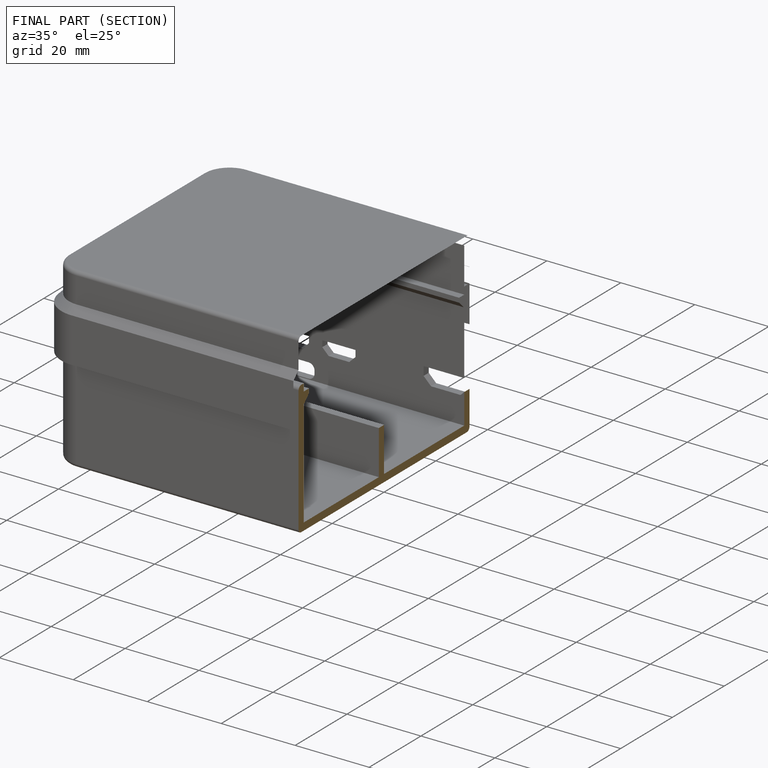
[diagram: finished part — half-section view (interior)]
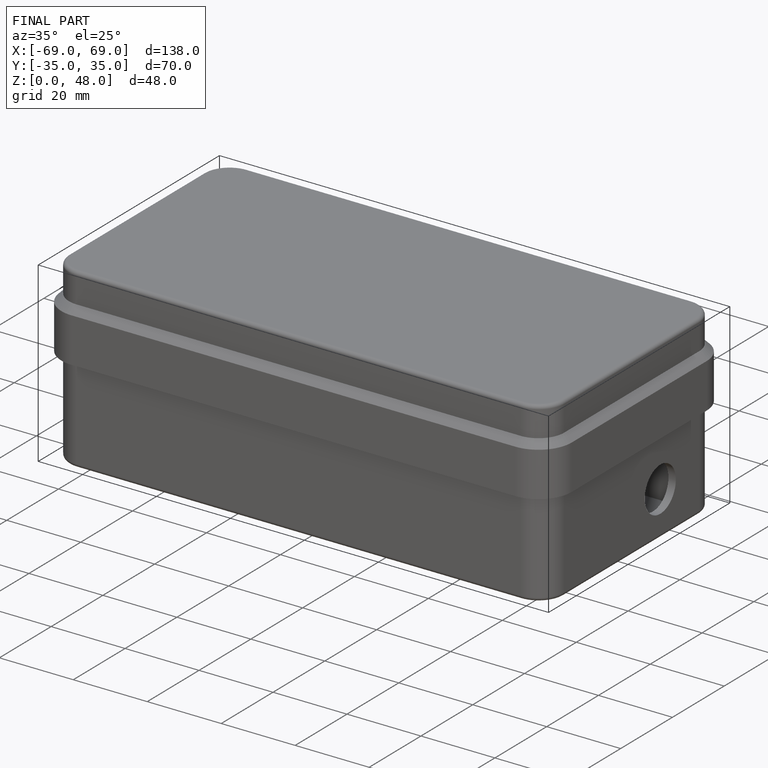
[diagram: finished part — iso view with bounding-box wireframe]
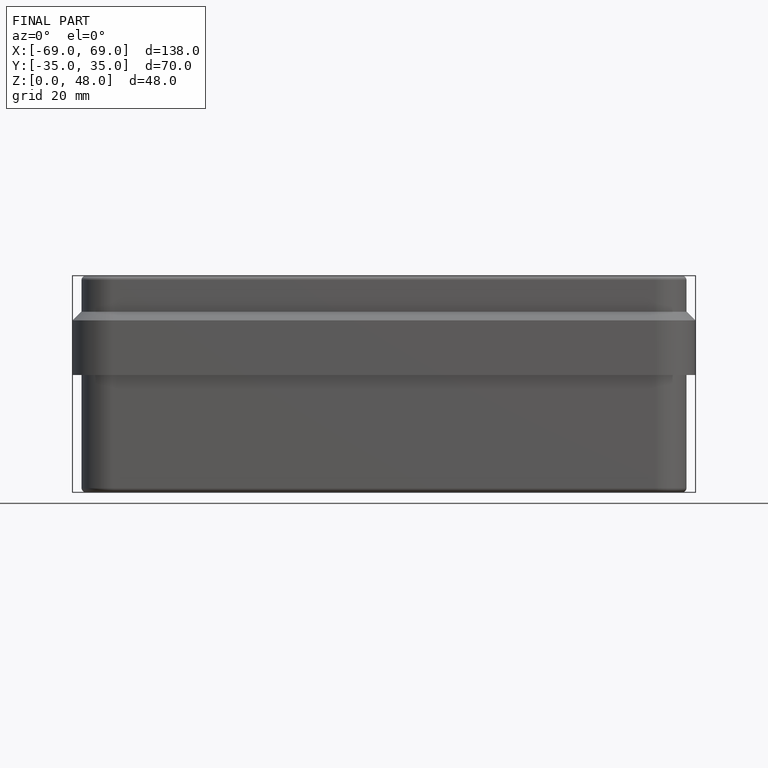
[diagram: finished part — front view with bounding-box wireframe]
